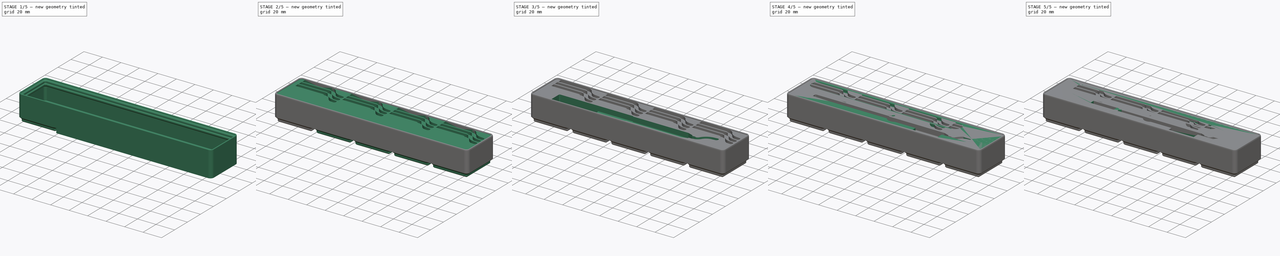
[diagram: build sequence overview — one tinted view per stage of 5, left to right]
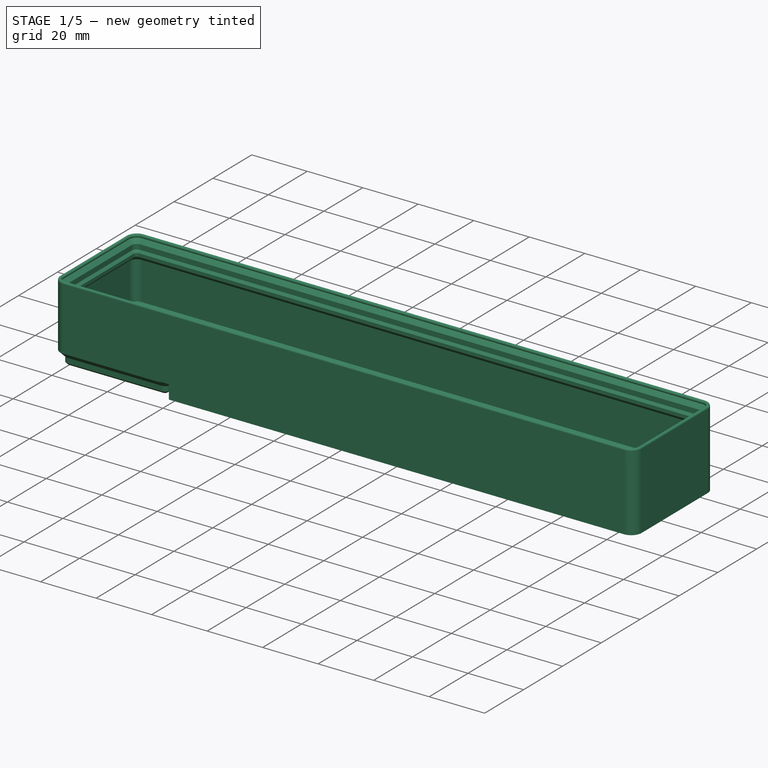
[diagram: stage 1 of 5 — iso view after this stage's code; geometry added in this stage tinted green]
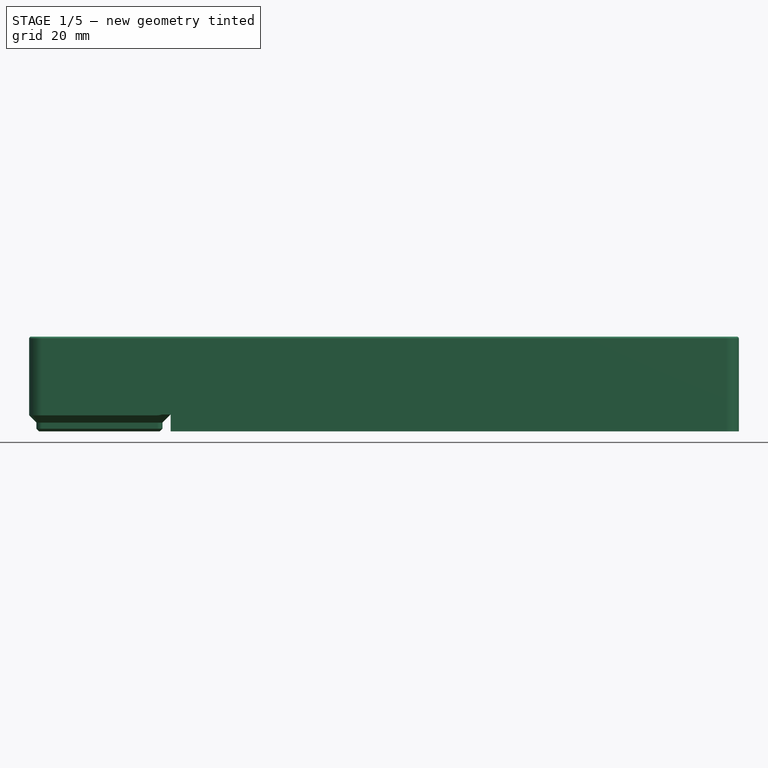
[diagram: stage 1 of 5 — front view after this stage's code; geometry added in this stage tinted green]
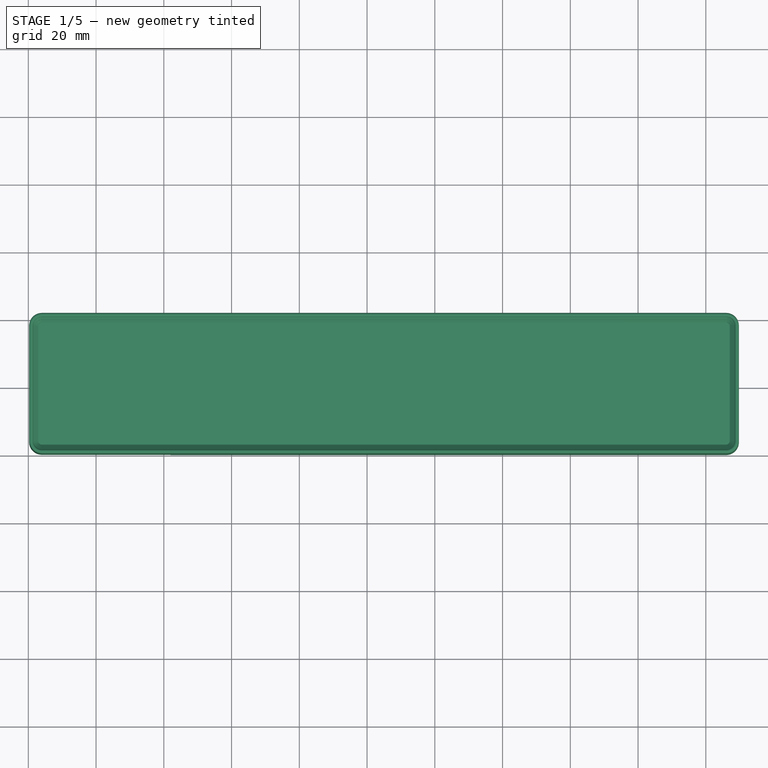
[diagram: stage 1 of 5 — top view after this stage's code; geometry added in this stage tinted green]
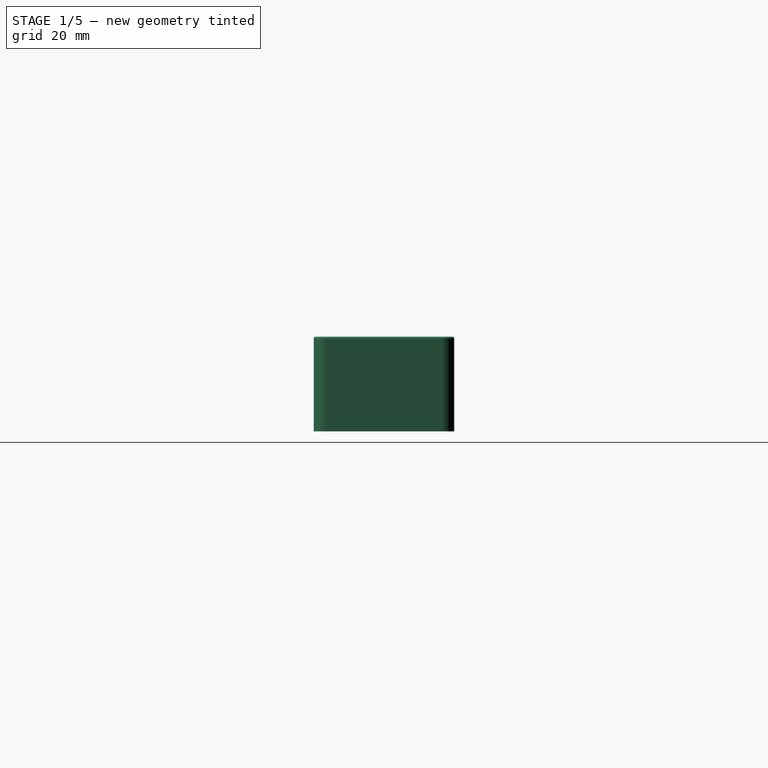
[diagram: stage 1 of 5 — right view after this stage's code; geometry added in this stage tinted green]
FCSTD DOCUMENT  (FreeCAD 0.21R)
Label: MyGridfinity 5x1x4
License: Creative Commons Attribution
LicenseURL: http://creativecommons.org/licenses/by/4.0/
objects: Sketcher::SketchObject×19, PartDesign::Pocket×11, PartDesign::Fillet×6, PartDesign::LinearPattern×4, PartDesign::Body×4, PartDesign::FeatureBase×4, PartDesign::Plane×2, PartDesign::Pad×2, PartDesign::MultiTransform×2, PartDesign::SubShapeBinder×2, App::FeaturePython×1, PartDesign::AdditivePipe×1, PartDesign::SubtractiveLoft×1, PartDesign::Hole×1
note: 81 computed .brp shape members not serialized (recipe doc carries the construction recipe); baked Part::Feature solids carry a one-line shape summary decoded from their .brp

FEATURE [App::FeaturePython] dd  # WARN: FeaturePython — macro-defined, semantics opaque (R4)
  DynamicData = Created with DynamicData (v2.46) workbench. | This is a simple container object built | for holding custom properties.
  ddBase_screw_diameter = 3
  ddBase_screw_hole_depth = 2.6
  ddBottom_chamfer = 0.8
  ddCell_center = 21
  ddClearance = 0.25
  ddColumns = 5
  ddCorner_fillet = 4
  ddFrame_height = 5
  ddFrame_width = 2.4
  ddGrid_size = 42
  ddHeight = 4
  ddMagnet_diameter = 6.5
  ddMagnet_inset = 8
  ddMagnet_thickness = 2.4
  ddRows = 1
  ddSet_screw_holes = true
  ddStorage_height = 28
  ddStorage_height_unit = 7
  ddTotal_length = 42
  ddTotal_width = 210
  ddWall_thickness = 1.2
  expr: ddBase_screw_hole_depth = max(ddSet_screw_holes * (ddFrame_height - ddMagnet_thickness); 1e-06mm)
  expr: ddCell_center = ddGrid_size / 2
  expr: ddStorage_height = max(ddStorage_height_unit * ddHeight; ddFrame_height + ddWall_thickness)
  expr: ddStorage_height_unit = ddGrid_size / 6
  expr: ddTotal_length = ddRows * ddGrid_size
  expr: ddTotal_width = ddColumns * ddGrid_size
FEATURE [Sketcher::SketchObject] Sketch005  label="Sketch_storage_wall_profile"
  AttachmentOffset = pos=(0,0,21) rot=(0,0,1;0rad)
  FullyConstrained = true
  MapMode = 5
  Placement = pos=(21,-4.7e-15,4.7e-15) rot=(0.57735,0.57735,0.57735;2.0944rad)
  Support = -> [YZ_Plane001]
  expr: .AttachmentOffset.Base.z = dd.ddCell_center
  expr: Constraints[16] = dd.ddFrame_height - dd.ddClearance
  expr: Constraints[17] = dd.ddBottom_chamfer
  expr: Constraints[26] = dd.ddWall_thickness
  expr: Constraints[27] = dd.ddWall_thickness
  expr: Constraints[28] = dd.ddStorage_height
  expr: Constraints[47] = dd.ddWall_thickness
  expr: Constraints[6] = dd.ddClearance
  expr: Constraints[7] = dd.ddFrame_width - dd.ddClearance
  sketch-geometry (17):
    g0: LineSegment StartX=0.25 StartY=0 StartZ=0 EndX=0.25 EndY=27.4 EndZ=0
    g1: LineSegment StartX=0.25 StartY=27.4 StartZ=0 EndX=0.85 EndY=27.4 EndZ=0
    g2: LineSegment StartX=0.85 StartY=27.4 StartZ=0 EndX=0.425736 EndY=26.9757 EndZ=0
    g3: LineSegment StartX=0.425736 StartY=26.9757 StartZ=0 EndX=2.15 EndY=25.2515 EndZ=0
    g4: LineSegment StartX=2.15 StartY=25.2515 StartZ=0 EndX=0 EndY=27.4015 EndZ=0
    g5: LineSegment StartX=2.15 StartY=25.2515 StartZ=0 EndX=2.15 EndY=23.4515 EndZ=0
    g6: LineSegment StartX=2.15 StartY=23.4515 StartZ=0 EndX=2.95 EndY=22.6515 EndZ=0
    g7: LineSegment StartX=2.95 StartY=22.6515 StartZ=0 EndX=2.95 EndY=21.4515 EndZ=0
    g8: LineSegment StartX=2.95 StartY=21.4515 StartZ=0 EndX=1.45 EndY=19.9515 EndZ=0
    g9: LineSegment StartX=1.45 StartY=19.9515 StartZ=0 EndX=1.45 EndY=-8.04853 EndZ=0
    g10: LineSegment StartX=1.45 StartY=-8.04853 StartZ=0 EndX=0.25 EndY=-8.04853 EndZ=0
    g11: LineSegment StartX=0.85 StartY=27.4 StartZ=0 EndX=0.85 EndY=28 EndZ=0
    g12: LineSegment StartX=1.45 StartY=19.9515 StartZ=0 EndX=1.45 EndY=28 EndZ=0
    g13: LineSegment StartX=0.85 StartY=28 StartZ=0 EndX=1.45 EndY=28 EndZ=0
    g14: LineSegment StartX=0.25 StartY=-8.04853 StartZ=0 EndX=0.25 EndY=0 EndZ=0
    g15: ArcOfCircle CenterX=0.85 CenterY=27.4 CenterZ=0 NormalX=0 NormalY=0 NormalZ=1 AngleXU=0 Radius=0.6 StartAngle=1.5708 EndAngle=3.14159
    g16: ArcOfCircle CenterX=0.85 CenterY=27.4 CenterZ=0 NormalX=0 NormalY=0 NormalZ=1 AngleXU=0 Radius=0.6 StartAngle=3.92699 EndAngle=7.85398
  constraints (48):
    c: Vertical(g0)
    c: Coincident(g1,g0)
    c: Horizontal(g1)
    c: Coincident(g2,g1)
    c: Coincident(g3,g2)
    c: Perpendicular(g3,g2)
    c: DistanceX(g-1,g0) = 0.25
    c: DistanceX(g-1,g3) = 2.15
    c: Coincident(g4,g3)
    c: PointOnObject(g4,g-2)
    c: PointOnObject(g2,g4)
    c: Angle(g-2,g4) = 0.785398
    c: Coincident(g5,g3)
    c: Vertical(g5)
    c: Coincident(g6,g5)
    c: Parallel(g4,g6)
    c: DistanceY(g6,g4) = 4.75
    c: DistanceX(g5,g6) = 0.8
    c: Coincident(g7,g6)
    c: Vertical(g7)
    c: Coincident(g8,g7)
    c: Coincident(g9,g8)
    c: Vertical(g9)
    c: Coincident(g10,g9)
    c: Horizontal(g10)
    c: Perpendicular(g8,g4)
    c: DistanceY(g7,g6) = 1.2
    c: DistanceX(g0,g9) = 1.2
    c: DistanceY(g-1,g11) = 28
    c: Coincident(g12,g8)
    c: Vertical(g12)
    c: Coincident(g13,g11)
    c: Coincident(g13,g12)
    c: Horizontal(g13)
    c: PointOnObject(g0,g-1)
    c: Coincident(g14,g10)
    c: Coincident(g14,g0)
    c: Vertical(g14)
    c: Equal(g12,g14)
    c: Vertical(g11)
    c: Coincident(g15,g1)
    c: Coincident(g15,g0)
    c: Coincident(g15,g11)
    c: Coincident(g16,g15)
    c: Coincident(g16,g15)
    c: Coincident(g16,g3)
    c: Coincident(g11,g15)
    c: Diameter(g15) = 1.2
FEATURE [Sketcher::SketchObject] Sketch006  label="Sketch_storage_wall_path"
  FullyConstrained = true
  MapMode = 5
  Support = -> [XY_Plane001]
  expr: Constraints[21] = dd.ddCorner_fillet
  expr: Constraints[22] = dd.ddTotal_width
  expr: Constraints[23] = dd.ddTotal_length
  sketch-geometry (10):
    g0: ArcOfCircle CenterX=4 CenterY=4 CenterZ=0 NormalX=0 NormalY=0 NormalZ=1 AngleXU=0 Radius=4 StartAngle=3.14159 EndAngle=4.71239
    g1: LineSegment StartX=0 StartY=4 StartZ=0 EndX=0 EndY=38 EndZ=0
    g2: ArcOfCircle CenterX=4 CenterY=38 CenterZ=0 NormalX=0 NormalY=0 NormalZ=1 AngleXU=0 Radius=4 StartAngle=1.5708 EndAngle=3.14159
    g3: LineSegment StartX=4 StartY=42 StartZ=0 EndX=206 EndY=42 EndZ=0
    g4: ArcOfCircle CenterX=206 CenterY=38 CenterZ=0 NormalX=0 NormalY=0 NormalZ=1 AngleXU=0 Radius=4 StartAngle=-9e-16 EndAngle=1.5708
    g5: LineSegment StartX=210 StartY=38 StartZ=0 EndX=210 EndY=4 EndZ=0
    g6: ArcOfCircle CenterX=206 CenterY=4 CenterZ=0 NormalX=0 NormalY=0 NormalZ=1 AngleXU=0 Radius=4 StartAngle=4.71239 EndAngle=6.28319
    g7: LineSegment StartX=206 StartY=0 StartZ=0 EndX=4 EndY=0 EndZ=0
    g8: GeomPoint X=0 Y=0 Z=0
    g9: GeomPoint X=210 Y=42 Z=0
  constraints (24):
    c: Tangent(g0,g1) = 1.5708
    c: Tangent(g1,g2) = 1.5708
    c: Tangent(g2,g3) = 1.5708
    c: Tangent(g3,g4) = 1.5708
    c: Tangent(g4,g5) = 1.5708
    c: Tangent(g5,g6) = 1.5708
    c: Tangent(g6,g7) = 1.5708
    c: Tangent(g7,g0) = 1.5708
    c: Horizontal(g3)
    c: Horizontal(g7)
    c: Vertical(g1)
    c: Vertical(g5)
    c: Equal(g0,g2)
    c: Equal(g2,g4)
    c: Equal(g4,g6)
    c: PointOnObject(g8,g1)
    c: PointOnObject(g8,g7)
    c: PointOnObject(g9,g3)
    c: PointOnObject(g9,g5)
    c: PointOnObject(g8,g-2)
    c: PointOnObject(g0,g-1)
    c: Radius(g0) = 4
    c: DistanceX(g0,g5) = 210
    c: DistanceY(g0,g2) = 42
FEATURE [PartDesign::AdditivePipe] AdditivePipe  label="AdditivePipe_storage_wall"
  AuxilleryCurvelinear = true
  AuxillerySpineTangent = false
  Binormal = (0,0,0)
  Mode = 0
  Placement = pos=(0,0,0) rot=(0.57735,0.57735,0.57735;2.0944rad)
  Profile = -> Sketch005
  Refine = true
  Spine = -> Sketch006
  SpineTangent = false
  Transformation = 0
  Transition = 0
FEATURE [PartDesign::Plane] DatumPlane  label="DatumPlane_frame_height"
  AttachmentOffset = pos=(0,0,5) rot=(0,0,1;0rad)
  Length = 260.096
  MapMode = 5
  Placement = pos=(0,0,5) rot=(0,0,1;0rad)
  ResizeMode = 0
  Support = -> [XY_Plane001]
  Width = 92.0958
  expr: .AttachmentOffset.Base.z = dd.ddFrame_height
FEATURE [Sketcher::SketchObject] Sketch007  label="Sketch_trim_wall_bottom"
  FullyConstrained = true
  MapMode = 5
  Placement = pos=(0,0,5) rot=(0,0,1;0rad)
  Support = -> [DatumPlane]
  expr: Constraints[7] = dd.ddTotal_width + 10mm
  expr: Constraints[8] = dd.ddTotal_length + 10mm
  sketch-geometry (4):
    g0: LineSegment StartX=-5 StartY=-5 StartZ=0 EndX=215 EndY=-5 EndZ=0
    g1: LineSegment StartX=215 StartY=-5 StartZ=0 EndX=215 EndY=47 EndZ=0
    g2: LineSegment StartX=215 StartY=47 StartZ=0 EndX=-5 EndY=47 EndZ=0
    g3: LineSegment StartX=-5 StartY=47 StartZ=0 EndX=-5 EndY=-5 EndZ=0
  constraints (12):
    c: Coincident(g0,g1)
    c: Coincident(g1,g2)
    c: Coincident(g2,g3)
    c: Horizontal(g0)
    c: Horizontal(g2)
    c: Vertical(g1)
    c: Vertical(g3)
    c: DistanceX(g0,g0) = 220
    c: DistanceY(g0,g2) = 52
    c: Coincident(g3,g0)
    c: DistanceX(g0,g-1) = 5
    c: DistanceY(g0,g-1) = 5
FEATURE [PartDesign::Pocket] Pocket  label="Pocket_trim_wall_bottom"
  BaseFeature = -> AdditivePipe
  Direction = (0,0,-1)
  Length = 5
  Length2 = 5
  Placement = pos=(0,0,0) rot=(0.57735,0.57735,0.57735;2.0944rad)
  Profile = -> Sketch007
  ReferenceAxis = -> Sketch007 [N_Axis]
  Refine = true
  Type = 1
FEATURE [Sketcher::SketchObject] Sketch008  label="Sketch_storage_stock"
  FullyConstrained = true
  MapMode = 5
  Support = -> [XY_Plane001]
  expr: Constraints[19] = dd.ddClearance
  expr: Constraints[20] = dd.ddClearance
  expr: Constraints[21] = dd.ddCorner_fillet
  expr: Constraints[22] = dd.ddTotal_width - 2 * dd.ddCorner_fillet
  expr: Constraints[23] = dd.ddTotal_length - 2 * dd.ddCorner_fillet
  sketch-geometry (10):
    g0: ArcOfCircle CenterX=4 CenterY=4 CenterZ=0 NormalX=0 NormalY=0 NormalZ=1 AngleXU=0 Radius=3.75 StartAngle=3.14159 EndAngle=4.71239
    g1: LineSegment StartX=0.25 StartY=4 StartZ=0 EndX=0.25 EndY=38 EndZ=0
    g2: ArcOfCircle CenterX=4 CenterY=38 CenterZ=0 NormalX=0 NormalY=0 NormalZ=1 AngleXU=0 Radius=3.75 StartAngle=1.5708 EndAngle=3.14159
    g3: LineSegment StartX=4 StartY=41.75 StartZ=0 EndX=206 EndY=41.75 EndZ=0
    g4: ArcOfCircle CenterX=206 CenterY=38 CenterZ=0 NormalX=0 NormalY=0 NormalZ=1 AngleXU=0 Radius=3.75 StartAngle=-9e-16 EndAngle=1.5708
    g5: LineSegment StartX=209.75 StartY=38 StartZ=0 EndX=209.75 EndY=4 EndZ=0
    g6: ArcOfCircle CenterX=206 CenterY=4 CenterZ=0 NormalX=0 NormalY=0 NormalZ=1 AngleXU=0 Radius=3.75 StartAngle=4.71239 EndAngle=6.28319
    g7: LineSegment StartX=206 StartY=0.25 StartZ=0 EndX=4 EndY=0.25 EndZ=0
    g8: GeomPoint X=0.25 Y=0.25 Z=0
    g9: GeomPoint X=209.75 Y=41.75 Z=0
  constraints (24):
    c: Tangent(g0,g1) = 1.5708
    c: Tangent(g1,g2) = 1.5708
    c: Tangent(g2,g3) = 1.5708
    c: Tangent(g3,g4) = 1.5708
    c: Tangent(g4,g5) = 1.5708
    c: Tangent(g5,g6) = 1.5708
    c: Tangent(g6,g7) = 1.5708
    c: Tangent(g7,g0) = 1.5708
    c: Horizontal(g3)
    c: Horizontal(g7)
    c: Vertical(g1)
    c: Vertical(g5)
    c: Equal(g0,g2)
    c: Equal(g2,g4)
    c: Equal(g4,g6)
    c: PointOnObject(g8,g1)
    c: PointOnObject(g8,g7)
    c: PointOnObject(g9,g3)
    c: PointOnObject(g9,g5)
    c: DistanceX(g-1,g0) = 0.25
    c: DistanceY(g-1,g0) = 0.25
    c: DistanceX(g-1,g0) = 4
    c: DistanceX(g2,g4) = 202
    c: DistanceY(g6,g4) = 34
FEATURE [PartDesign::Pad] Pad001  label="Pad_storage_stock"
  BaseFeature = -> Pocket
  Direction = (0,0,1)
  Length = 6.2
  Length2 = 10
  Placement = pos=(0,0,0) rot=(0.57735,0.57735,0.57735;2.0944rad)
  Profile = -> Sketch008
  ReferenceAxis = -> Sketch008 [N_Axis]
  Refine = true
  Type = 0
  expr: Length = dd.ddFrame_height + dd.ddWall_thickness
FEATURE [Sketcher::SketchObject] Sketch009  label="Sketch_storage_cell_cutout_top"
  AttachmentOffset = pos=(0,0,5) rot=(0,0,1;0rad)
  FullyConstrained = true
  MapMode = 5
  Placement = pos=(0,0,5) rot=(0,0,1;0rad)
  Support = -> [XY_Plane001]
  expr: .AttachmentOffset.Base.z = dd.ddFrame_height
  expr: Constraints[19] = dd.ddCorner_fillet - 1e-06mm
  expr: Constraints[20] = dd.ddCorner_fillet
  expr: Constraints[21] = dd.ddCorner_fillet
  expr: Constraints[31] = dd.ddCorner_fillet
  expr: Constraints[32] = dd.ddCorner_fillet
  expr: Constraints[33] = dd.ddGrid_size
  expr: Constraints[34] = dd.ddGrid_size
  sketch-geometry (14):
    g0: ArcOfCircle CenterX=4 CenterY=4 CenterZ=0 NormalX=0 NormalY=0 NormalZ=1 AngleXU=0 Radius=4 StartAngle=3.14159 EndAngle=4.71239
    g1: LineSegment StartX=1e-06 StartY=4 StartZ=0 EndX=1e-06 EndY=38 EndZ=0
    g2: ArcOfCircle CenterX=4 CenterY=38 CenterZ=0 NormalX=0 NormalY=0 NormalZ=1 AngleXU=0 Radius=4 StartAngle=1.5708 EndAngle=3.14159
    g3: LineSegment StartX=4 StartY=42 StartZ=0 EndX=38 EndY=42 EndZ=0
    g4: ArcOfCircle CenterX=38 CenterY=38 CenterZ=0 NormalX=0 NormalY=0 NormalZ=1 AngleXU=0 Radius=4 StartAngle=-9e-16 EndAngle=1.5708
    g5: LineSegment StartX=42 StartY=38 StartZ=0 EndX=42 EndY=4 EndZ=0
    g6: ArcOfCircle CenterX=38 CenterY=4 CenterZ=0 NormalX=0 NormalY=0 NormalZ=1 AngleXU=0 Radius=4 StartAngle=4.71239 EndAngle=6.28319
    g7: LineSegment StartX=38 StartY=1e-06 StartZ=0 EndX=4 EndY=1e-06 EndZ=0
    g8: GeomPoint X=1e-06 Y=1e-06 Z=0
    g9: GeomPoint X=42 Y=42 Z=0
    g10: LineSegment StartX=0 StartY=0 StartZ=0 EndX=42 EndY=0 EndZ=0
    g11: LineSegment StartX=42 StartY=0 StartZ=0 EndX=42 EndY=42 EndZ=0
    g12: LineSegment StartX=42 StartY=42 StartZ=0 EndX=0 EndY=42 EndZ=0
    g13: LineSegment StartX=0 StartY=42 StartZ=0 EndX=0 EndY=0 EndZ=0
  constraints (35):
    c: Tangent(g0,g1) = 1.5708
    c: Tangent(g1,g2) = 1.5708
    c: Tangent(g2,g3) = 1.5708
    c: Tangent(g3,g4) = 1.5708
    c: Tangent(g4,g5) = 1.5708
    c: Tangent(g5,g6) = 1.5708
    c: Tangent(g6,g7) = 1.5708
    c: Tangent(g7,g0) = 1.5708
    c: Horizontal(g3)
    c: Horizontal(g7)
    c: Vertical(g1)
    c: Vertical(g5)
    c: Equal(g0,g2)
    c: Equal(g2,g4)
    c: Equal(g4,g6)
    c: PointOnObject(g8,g1)
    c: PointOnObject(g8,g7)
    c: PointOnObject(g9,g3)
    c: PointOnObject(g9,g5)
    c: Radius(g0) = 4
    c: DistanceX(g-1,g0) = 4
    c: DistanceY(g-1,g0) = 4
    c: Coincident(g10,g11)
    c: Coincident(g11,g12)
    c: Coincident(g12,g13)
    c: Coincident(g13,g10)
    c: Horizontal(g10)
    c: Horizontal(g12)
    c: Vertical(g11)
    c: Vertical(g13)
    c: Coincident(g10,g-1)
    c: DistanceX(g6,g10) = 4
    c: DistanceY(g2,g12) = 4
    c: DistanceX(g10,g10) = 42
    c: DistanceY(g10,g12) = 42
FEATURE [Sketcher::SketchObject] Sketch010  label="Sketch_storage_cell_cutout_top_chamfer"
  AttachmentOffset = pos=(0,0,2.6) rot=(0,0,1;0rad)
  FullyConstrained = true
  MapMode = 5
  Placement = pos=(0,0,2.6) rot=(0,0,1;0rad)
  Support = -> [XY_Plane001]
  expr: .AttachmentOffset.Base.z = dd.ddFrame_height - dd.ddFrame_width
  expr: Constraints[19] = Sketch009.Constraints[19] - dd.ddFrame_width
  expr: Constraints[20] = Sketch009.Constraints[20]
  expr: Constraints[21] = Sketch009.Constraints[21]
  expr: Constraints[31] = Sketch009.Constraints[31]
  expr: Constraints[32] = Sketch009.Constraints[32]
  expr: Constraints[33] = Sketch009.Constraints[33]
  expr: Constraints[34] = Sketch009.Constraints[34]
  sketch-geometry (14):
    g0: ArcOfCircle CenterX=4 CenterY=4 CenterZ=0 NormalX=0 NormalY=0 NormalZ=1 AngleXU=0 Radius=1.6 StartAngle=3.14159 EndAngle=4.71239
    g1: LineSegment StartX=2.4 StartY=4 StartZ=0 EndX=2.4 EndY=38 EndZ=0
    g2: ArcOfCircle CenterX=4 CenterY=38 CenterZ=0 NormalX=0 NormalY=0 NormalZ=1 AngleXU=0 Radius=1.6 StartAngle=1.5708 EndAngle=3.14159
    g3: LineSegment StartX=4 StartY=39.6 StartZ=0 EndX=38 EndY=39.6 EndZ=0
    g4: ArcOfCircle CenterX=38 CenterY=38 CenterZ=0 NormalX=0 NormalY=0 NormalZ=1 AngleXU=0 Radius=1.6 StartAngle=3.81e-14 EndAngle=1.5708
    g5: LineSegment StartX=39.6 StartY=38 StartZ=0 EndX=39.6 EndY=4 EndZ=0
    g6: ArcOfCircle CenterX=38 CenterY=4 CenterZ=0 NormalX=0 NormalY=0 NormalZ=1 AngleXU=0 Radius=1.6 StartAngle=4.71239 EndAngle=6.28319
    g7: LineSegment StartX=38 StartY=2.4 StartZ=0 EndX=4 EndY=2.4 EndZ=0
    g8: GeomPoint X=2.4 Y=2.4 Z=0
    g9: GeomPoint X=39.6 Y=39.6 Z=0
    g10: LineSegment StartX=0 StartY=0 StartZ=0 EndX=42 EndY=0 EndZ=0
    g11: LineSegment StartX=42 StartY=0 StartZ=0 EndX=42 EndY=42 EndZ=0
    g12: LineSegment StartX=42 StartY=42 StartZ=0 EndX=0 EndY=42 EndZ=0
    g13: LineSegment StartX=0 StartY=42 StartZ=0 EndX=0 EndY=0 EndZ=0
  constraints (35):
    c: Tangent(g0,g1) = 1.5708
    c: Tangent(g1,g2) = 1.5708
    c: Tangent(g2,g3) = 1.5708
    c: Tangent(g3,g4) = 1.5708
    c: Tangent(g4,g5) = 1.5708
    c: Tangent(g5,g6) = 1.5708
    c: Tangent(g6,g7) = 1.5708
    c: Tangent(g7,g0) = 1.5708
    c: Horizontal(g3)
    c: Horizontal(g7)
    c: Vertical(g1)
    c: Vertical(g5)
    c: Equal(g0,g2)
    c: Equal(g2,g4)
    c: Equal(g4,g6)
    c: PointOnObject(g8,g1)
    c: PointOnObject(g8,g7)
    c: PointOnObject(g9,g3)
    c: PointOnObject(g9,g5)
    c: Radius(g0) = 1.6
    c: DistanceX(g-1,g0) = 4
    c: DistanceY(g-1,g0) = 4
    c: Coincident(g10,g11)
    c: Coincident(g11,g12)
    c: Coincident(g12,g13)
    c: Coincident(g13,g10)
    c: Horizontal(g10)
    c: Horizontal(g12)
    c: Vertical(g11)
    c: Vertical(g13)
    c: Coincident(g10,g-1)
    c: DistanceX(g6,g10) = 4
    c: DistanceY(g2,g12) = 4
    c: DistanceX(g10,g10) = 42
    c: DistanceY(g10,g12) = 42
FEATURE [Sketcher::SketchObject] Sketch011  label="Sketch_storage_cell_cutout_bottom_chamfer"
  AttachmentOffset = pos=(0,0,0.8) rot=(0,0,1;0rad)
  FullyConstrained = true
  MapMode = 5
  Placement = pos=(0,0,0.8) rot=(0,0,1;0rad)
  Support = -> [XY_Plane001]
  expr: .AttachmentOffset.Base.z = dd.ddBottom_chamfer
  expr: Constraints[19] = Sketch010.Constraints[19]
  expr: Constraints[20] = Sketch010.Constraints[20]
  expr: Constraints[21] = Sketch010.Constraints[21]
  expr: Constraints[31] = Sketch010.Constraints[31]
  expr: Constraints[32] = Sketch010.Constraints[32]
  expr: Constraints[33] = Sketch010.Constraints[33]
  expr: Constraints[34] = Sketch010.Constraints[34]
  sketch-geometry (14):
    g0: ArcOfCircle CenterX=4 CenterY=4 CenterZ=0 NormalX=0 NormalY=0 NormalZ=1 AngleXU=0 Radius=1.6 StartAngle=3.14159 EndAngle=4.71239
    g1: LineSegment StartX=2.4 StartY=4 StartZ=0 EndX=2.4 EndY=38 EndZ=0
    g2: ArcOfCircle CenterX=4 CenterY=38 CenterZ=0 NormalX=0 NormalY=0 NormalZ=1 AngleXU=0 Radius=1.6 StartAngle=1.5708 EndAngle=3.14159
    g3: LineSegment StartX=4 StartY=39.6 StartZ=0 EndX=38 EndY=39.6 EndZ=0
    g4: ArcOfCircle CenterX=38 CenterY=38 CenterZ=0 NormalX=0 NormalY=0 NormalZ=1 AngleXU=0 Radius=1.6 StartAngle=3.81e-14 EndAngle=1.5708
    g5: LineSegment StartX=39.6 StartY=38 StartZ=0 EndX=39.6 EndY=4 EndZ=0
    g6: ArcOfCircle CenterX=38 CenterY=4 CenterZ=0 NormalX=0 NormalY=0 NormalZ=1 AngleXU=0 Radius=1.6 StartAngle=4.71239 EndAngle=6.28319
    g7: LineSegment StartX=38 StartY=2.4 StartZ=0 EndX=4 EndY=2.4 EndZ=0
    g8: GeomPoint X=2.4 Y=2.4 Z=0
    g9: GeomPoint X=39.6 Y=39.6 Z=0
    g10: LineSegment StartX=0 StartY=0 StartZ=0 EndX=42 EndY=0 EndZ=0
    g11: LineSegment StartX=42 StartY=0 StartZ=0 EndX=42 EndY=42 EndZ=0
    g12: LineSegment StartX=42 StartY=42 StartZ=0 EndX=0 EndY=42 EndZ=0
    g13: LineSegment StartX=0 StartY=42 StartZ=0 EndX=0 EndY=0 EndZ=0
  constraints (35):
    c: Tangent(g0,g1) = 1.5708
    c: Tangent(g1,g2) = 1.5708
    c: Tangent(g2,g3) = 1.5708
    c: Tangent(g3,g4) = 1.5708
    c: Tangent(g4,g5) = 1.5708
    c: Tangent(g5,g6) = 1.5708
    c: Tangent(g6,g7) = 1.5708
    c: Tangent(g7,g0) = 1.5708
    c: Horizontal(g3)
    c: Horizontal(g7)
    c: Vertical(g1)
    c: Vertical(g5)
    c: Equal(g0,g2)
    c: Equal(g2,g4)
    c: Equal(g4,g6)
    c: PointOnObject(g8,g1)
    c: PointOnObject(g8,g7)
    c: PointOnObject(g9,g3)
    c: PointOnObject(g9,g5)
    c: Radius(g0) = 1.6
    c: DistanceX(g-1,g0) = 4
    c: DistanceY(g-1,g0) = 4
    c: Coincident(g10,g11)
    c: Coincident(g11,g12)
    c: Coincident(g12,g13)
    c: Coincident(g13,g10)
    c: Horizontal(g10)
    c: Horizontal(g12)
    c: Vertical(g11)
    c: Vertical(g13)
    c: Coincident(g10,g-1)
    c: DistanceX(g6,g10) = 4
    c: DistanceY(g2,g12) = 4
    c: DistanceX(g10,g10) = 42
    c: DistanceY(g10,g12) = 42
FEATURE [Sketcher::SketchObject] Sketch012  label="Sketch_storage_cell_cutout_bottom"
  FullyConstrained = true
  MapMode = 5
  Support = -> [XY_Plane001]
  expr: Constraints[19] = Sketch011.Constraints[19] - dd.ddBottom_chamfer
  expr: Constraints[20] = Sketch011.Constraints[20]
  expr: Constraints[21] = Sketch011.Constraints[21]
  expr: Constraints[31] = Sketch011.Constraints[31]
  expr: Constraints[32] = Sketch011.Constraints[32]
  expr: Constraints[33] = Sketch011.Constraints[33]
  expr: Constraints[34] = Sketch011.Constraints[34]
  sketch-geometry (14):
    g0: ArcOfCircle CenterX=4 CenterY=4 CenterZ=0 NormalX=0 NormalY=0 NormalZ=1 AngleXU=0 Radius=0.799999 StartAngle=3.14159 EndAngle=4.71239
    g1: LineSegment StartX=3.2 StartY=4 StartZ=0 EndX=3.2 EndY=38 EndZ=0
    g2: ArcOfCircle CenterX=4 CenterY=38 CenterZ=0 NormalX=0 NormalY=0 NormalZ=1 AngleXU=0 Radius=0.799999 StartAngle=1.5708 EndAngle=3.14159
    g3: LineSegment StartX=4 StartY=38.8 StartZ=0 EndX=38 EndY=38.8 EndZ=0
    g4: ArcOfCircle CenterX=38 CenterY=38 CenterZ=0 NormalX=0 NormalY=0 NormalZ=1 AngleXU=0 Radius=0.799999 StartAngle=-2.7e-15 EndAngle=1.5708
    g5: LineSegment StartX=38.8 StartY=38 StartZ=0 EndX=38.8 EndY=4 EndZ=0
    g6: ArcOfCircle CenterX=38 CenterY=4 CenterZ=0 NormalX=0 NormalY=0 NormalZ=1 AngleXU=0 Radius=0.799999 StartAngle=4.71239 EndAngle=6.28319
    g7: LineSegment StartX=38 StartY=3.2 StartZ=0 EndX=4 EndY=3.2 EndZ=0
    g8: GeomPoint X=3.2 Y=3.2 Z=0
    g9: GeomPoint X=38.8 Y=38.8 Z=0
    g10: LineSegment StartX=0 StartY=0 StartZ=0 EndX=42 EndY=0 EndZ=0
    g11: LineSegment StartX=42 StartY=0 StartZ=0 EndX=42 EndY=42 EndZ=0
    g12: LineSegment StartX=42 StartY=42 StartZ=0 EndX=0 EndY=42 EndZ=0
    g13: LineSegment StartX=0 StartY=42 StartZ=0 EndX=0 EndY=0 EndZ=0
  constraints (35):
    c: Tangent(g0,g1) = 1.5708
    c: Tangent(g1,g2) = 1.5708
    c: Tangent(g2,g3) = 1.5708
    c: Tangent(g3,g4) = 1.5708
    c: Tangent(g4,g5) = 1.5708
    c: Tangent(g5,g6) = 1.5708
    c: Tangent(g6,g7) = 1.5708
    c: Tangent(g7,g0) = 1.5708
    c: Horizontal(g3)
    c: Horizontal(g7)
    c: Vertical(g1)
    c: Vertical(g5)
    c: Equal(g0,g2)
    c: Equal(g2,g4)
    c: Equal(g4,g6)
    c: PointOnObject(g8,g1)
    c: PointOnObject(g8,g7)
    c: PointOnObject(g9,g3)
    c: PointOnObject(g9,g5)
    c: Radius(g0) = 0.799999
    c: DistanceX(g-1,g0) = 4
    c: DistanceY(g-1,g0) = 4
    c: Coincident(g10,g11)
    c: Coincident(g11,g12)
    c: Coincident(g12,g13)
    c: Coincident(g13,g10)
    c: Horizontal(g10)
    c: Horizontal(g12)
    c: Vertical(g11)
    c: Vertical(g13)
    c: Coincident(g10,g-1)
    c: DistanceX(g6,g10) = 4
    c: DistanceY(g2,g12) = 4
    c: DistanceX(g10,g10) = 42
    c: DistanceY(g10,g12) = 42
FEATURE [PartDesign::SubtractiveLoft] SubtractiveLoft001  label="SubtractiveLoft_storage_cell_cutout"
  BaseFeature = -> Pad001
  Closed = false
  Placement = pos=(0,0,0) rot=(0.57735,0.57735,0.57735;2.0944rad)
  Profile = -> Sketch009
  Refine = true
  Ruled = true
  Sections = -> [Sketch010,Sketch011,Sketch012]
FEATURE [Sketcher::SketchObject] Sketch013  label="Sketch_base_magnets"
  FullyConstrained = true
  MapMode = 5
  Support = -> [XY_Plane001]
  expr: Constraints[21] = dd.ddMagnet_inset
  expr: Constraints[22] = dd.ddGrid_size
  expr: Constraints[23] = dd.ddGrid_size
  expr: Constraints[31] = dd.ddMagnet_diameter
  sketch-geometry (14):
    g0: ArcOfCircle CenterX=8 CenterY=8 CenterZ=0 NormalX=0 NormalY=0 NormalZ=1 AngleXU=0 Radius=8 StartAngle=3.14159 EndAngle=4.71239
    g1: LineSegment StartX=-1.8e-15 StartY=8 StartZ=0 EndX=-1.8e-15 EndY=34 EndZ=0
    g2: ArcOfCircle CenterX=8 CenterY=34 CenterZ=0 NormalX=0 NormalY=0 NormalZ=1 AngleXU=0 Radius=8 StartAngle=1.5708 EndAngle=3.14159
    g3: LineSegment StartX=8 StartY=42 StartZ=0 EndX=34 EndY=42 EndZ=0
    g4: ArcOfCircle CenterX=34 CenterY=34 CenterZ=0 NormalX=0 NormalY=0 NormalZ=1 AngleXU=0 Radius=8 StartAngle=0 EndAngle=1.5708
    g5: LineSegment StartX=42 StartY=34 StartZ=0 EndX=42 EndY=8 EndZ=0
    g6: ArcOfCircle CenterX=34 CenterY=8 CenterZ=0 NormalX=0 NormalY=0 NormalZ=1 AngleXU=0 Radius=8 StartAngle=4.71239 EndAngle=6.28319
    g7: LineSegment StartX=34 StartY=-1.8e-15 StartZ=0 EndX=8 EndY=-1.8e-15 EndZ=0
    g8: GeomPoint X=0 Y=0 Z=0
    g9: GeomPoint X=42 Y=42 Z=0
    g10: Circle CenterX=8 CenterY=34 CenterZ=0 NormalX=0 NormalY=0 NormalZ=1 AngleXU=0 Radius=3.25
    g11: Circle CenterX=34 CenterY=34 CenterZ=0 NormalX=0 NormalY=0 NormalZ=1 AngleXU=0 Radius=3.25
    g12: Circle CenterX=8 CenterY=8 CenterZ=0 NormalX=0 NormalY=0 NormalZ=1 AngleXU=0 Radius=3.25
    g13: Circle CenterX=34 CenterY=8 CenterZ=0 NormalX=0 NormalY=0 NormalZ=1 AngleXU=0 Radius=3.25
  constraints (32):
    c: Tangent(g0,g1) = 1.5708
    c: Tangent(g1,g2) = 1.5708
    c: Tangent(g2,g3) = 1.5708
    c: Tangent(g3,g4) = 1.5708
    c: Tangent(g4,g5) = 1.5708
    c: Tangent(g5,g6) = 1.5708
    c: Tangent(g6,g7) = 1.5708
    c: Tangent(g7,g0) = 1.5708
    c: Horizontal(g3)
    c: Horizontal(g7)
    c: Vertical(g1)
    c: Vertical(g5)
    c: Equal(g0,g2)
    c: Equal(g2,g4)
    c: Equal(g4,g6)
    c: PointOnObject(g8,g1)
    c: PointOnObject(g8,g7)
    c: PointOnObject(g9,g3)
    c: PointOnObject(g9,g5)
    c: PointOnObject(g0,g-2)
    c: PointOnObject(g0,g-1)
    c: DistanceX(g8,g0) = 8
    c: DistanceX(g0,g5) = 42
    c: DistanceY(g0,g2) = 42
    c: Coincident(g10,g2)
    c: Coincident(g11,g4)
    c: Coincident(g12,g0)
    c: Coincident(g13,g6)
    c: Equal(g12,g10)
    c: Equal(g12,g11)
    c: Equal(g12,g13)
    c: Diameter(g12) = 6.5
FEATURE [PartDesign::Hole] Hole  label="Hole_base_magnets"
  BaseFeature = -> SubtractiveLoft001
  CustomThreadClearance = 0
  Depth = 2.4
  DepthType = 0
  Diameter = 6.5
  DrillForDepth = false
  DrillPoint = 0
  DrillPointAngle = 118
  HoleCutCountersinkAngle = 90
  HoleCutCustomValues = false
  HoleCutDepth = 0
  HoleCutDiameter = 0
  HoleCutType = 0
  ModelThread = false
  Placement = pos=(0,0,0) rot=(0.57735,0.57735,0.57735;2.0944rad)
  Profile = -> Sketch013
  Refine = true
  Reversed = true
  Tapered = false
  TaperedAngle = 90
  ThreadClass = 0
  ThreadDepth = 2.4
  ThreadDepthType = 0
  ThreadDirection = 0
  ThreadFit = 0
  ThreadSize = 0
  ThreadType = 0
  Threaded = false
  UseCustomThreadClearance = false
  expr: Depth = dd.ddMagnet_thickness
  expr: Diameter = dd.ddMagnet_diameter
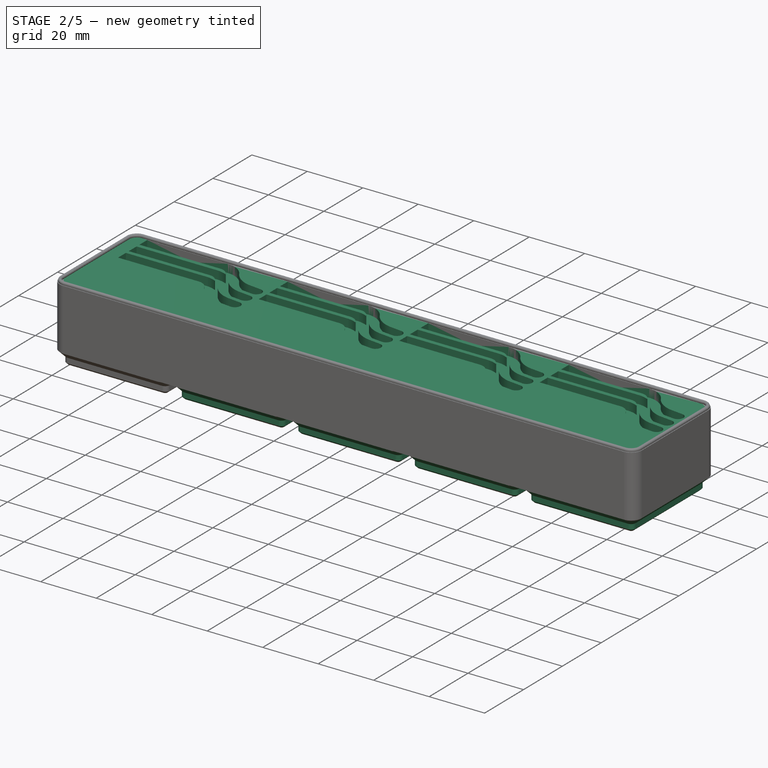
[diagram: stage 2 of 5 — iso view after this stage's code; geometry added in this stage tinted green]
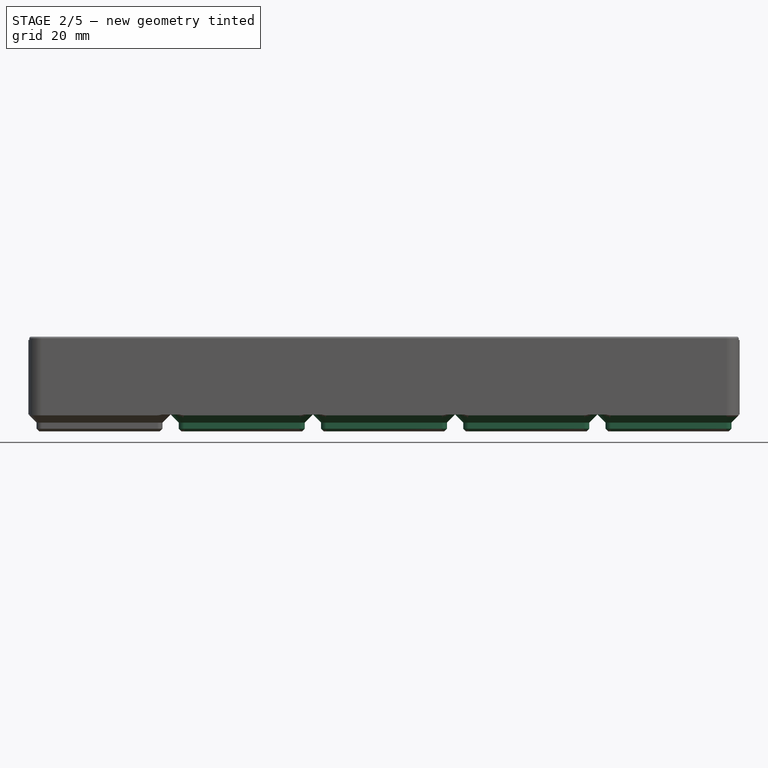
[diagram: stage 2 of 5 — front view after this stage's code; geometry added in this stage tinted green]
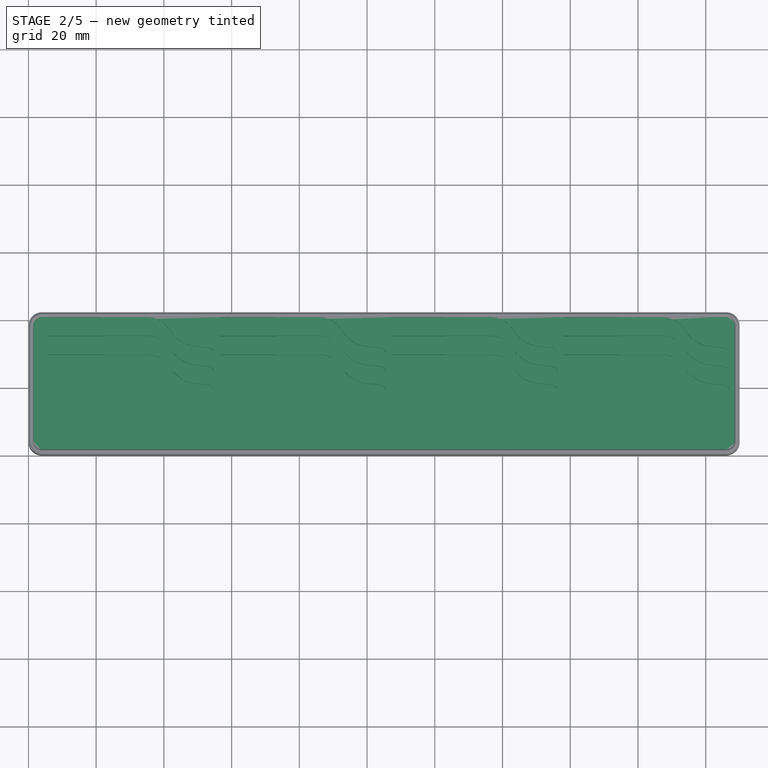
[diagram: stage 2 of 5 — top view after this stage's code; geometry added in this stage tinted green]
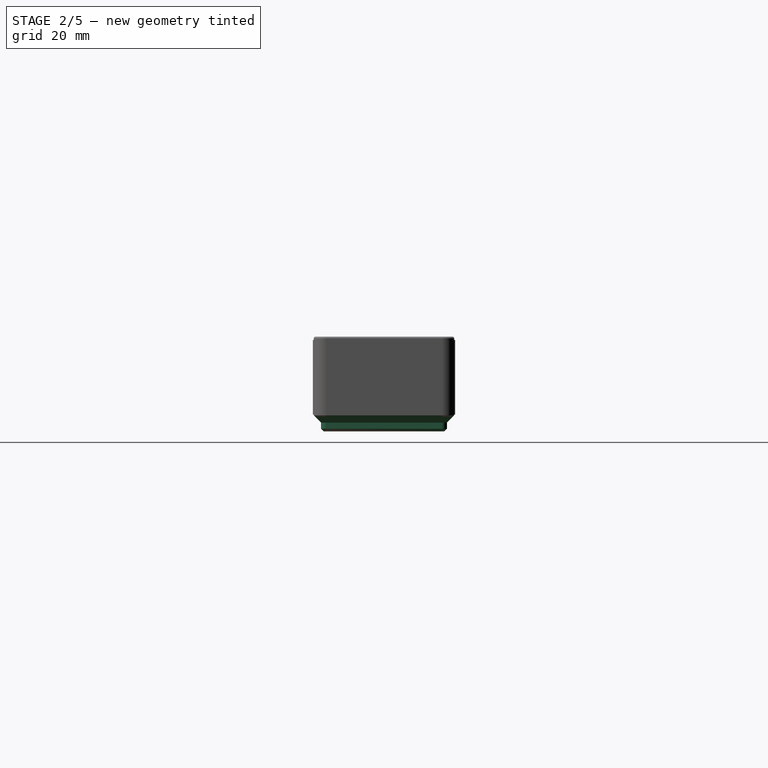
[diagram: stage 2 of 5 — right view after this stage's code; geometry added in this stage tinted green]
FEATURE [Sketcher::SketchObject] Sketch014  label="Sketch_base_screw_holes"
  AttachmentOffset = pos=(0,0,2.4) rot=(0,0,1;0rad)
  FullyConstrained = true
  MapMode = 5
  Placement = pos=(0,0,2.4) rot=(0,0,1;0rad)
  Support = -> [XY_Plane001]
  expr: .AttachmentOffset.Base.z = dd.ddMagnet_thickness
  expr: Constraints[21] = Sketch013.Constraints[21]
  expr: Constraints[22] = Sketch013.Constraints[22]
  expr: Constraints[23] = Sketch013.Constraints[23]
  expr: Constraints[31] = dd.ddBase_screw_diameter
  sketch-geometry (14):
    g0: ArcOfCircle CenterX=8 CenterY=8 CenterZ=0 NormalX=0 NormalY=0 NormalZ=1 AngleXU=0 Radius=8 StartAngle=3.14159 EndAngle=4.71239
    g1: LineSegment StartX=-1.8e-15 StartY=8 StartZ=0 EndX=-1.8e-15 EndY=34 EndZ=0
    g2: ArcOfCircle CenterX=8 CenterY=34 CenterZ=0 NormalX=0 NormalY=0 NormalZ=1 AngleXU=0 Radius=8 StartAngle=1.5708 EndAngle=3.14159
    g3: LineSegment StartX=8 StartY=42 StartZ=0 EndX=34 EndY=42 EndZ=0
    g4: ArcOfCircle CenterX=34 CenterY=34 CenterZ=0 NormalX=0 NormalY=0 NormalZ=1 AngleXU=0 Radius=8 StartAngle=0 EndAngle=1.5708
    g5: LineSegment StartX=42 StartY=34 StartZ=0 EndX=42 EndY=8 EndZ=0
    g6: ArcOfCircle CenterX=34 CenterY=8 CenterZ=0 NormalX=0 NormalY=0 NormalZ=1 AngleXU=0 Radius=8 StartAngle=4.71239 EndAngle=6.28319
    g7: LineSegment StartX=34 StartY=-1.8e-15 StartZ=0 EndX=8 EndY=-1.8e-15 EndZ=0
    g8: GeomPoint X=0 Y=0 Z=0
    g9: GeomPoint X=42 Y=42 Z=0
    g10: Circle CenterX=8 CenterY=34 CenterZ=0 NormalX=0 NormalY=0 NormalZ=1 AngleXU=0 Radius=1.5
    g11: Circle CenterX=34 CenterY=34 CenterZ=0 NormalX=0 NormalY=0 NormalZ=1 AngleXU=0 Radius=1.5
    g12: Circle CenterX=8 CenterY=8 CenterZ=0 NormalX=0 NormalY=0 NormalZ=1 AngleXU=0 Radius=1.5
    g13: Circle CenterX=34 CenterY=8 CenterZ=0 NormalX=0 NormalY=0 NormalZ=1 AngleXU=0 Radius=1.5
  constraints (32):
    c: Tangent(g0,g1) = 1.5708
    c: Tangent(g1,g2) = 1.5708
    c: Tangent(g2,g3) = 1.5708
    c: Tangent(g3,g4) = 1.5708
    c: Tangent(g4,g5) = 1.5708
    c: Tangent(g5,g6) = 1.5708
    c: Tangent(g6,g7) = 1.5708
    c: Tangent(g7,g0) = 1.5708
    c: Horizontal(g3)
    c: Horizontal(g7)
    c: Vertical(g1)
    c: Vertical(g5)
    c: Equal(g0,g2)
    c: Equal(g2,g4)
    c: Equal(g4,g6)
    c: PointOnObject(g8,g1)
    c: PointOnObject(g8,g7)
    c: PointOnObject(g9,g3)
    c: PointOnObject(g9,g5)
    c: PointOnObject(g0,g-2)
    c: PointOnObject(g0,g-1)
    c: DistanceX(g8,g0) = 8
    c: DistanceX(g0,g5) = 42
    c: DistanceY(g0,g2) = 42
    c: Coincident(g10,g2)
    c: Coincident(g11,g4)
    c: Coincident(g12,g0)
    c: Coincident(g13,g6)
    c: Equal(g12,g10)
    c: Equal(g12,g11)
    c: Equal(g12,g13)
    c: Diameter(g12) = 3
FEATURE [PartDesign::LinearPattern] LinearPattern002  label="LinearPattern_storage_grid_x"
  Direction = -> X_Axis001
  Length = 168
  Occurrences = 5
  Placement = pos=(0,0,0) rot=(0.57735,0.57735,0.57735;2.0944rad)
  Refine = true
  expr: Length = max(dd.ddTotal_width - dd.ddGrid_size; 1e-06mm)
  expr: Occurrences = max(dd.ddColumns; 2)
FEATURE [PartDesign::LinearPattern] LinearPattern003  label="LinearPattern_storage_grid_y"
  Direction = -> Y_Axis001
  Length = 42
  Occurrences = 1
  Placement = pos=(0,0,0) rot=(0.57735,0.57735,0.57735;2.0944rad)
  Refine = true
  expr: Length = max(dd.ddTotal_length - dd.ddGrid_size; dd.ddGrid_size)
  expr: Occurrences = dd.ddRows
FEATURE [PartDesign::MultiTransform] MultiTransform001  label="MultiTransform_storage_grid"
  BaseFeature = -> Hole
  Originals = -> [SubtractiveLoft001,Hole]
  Placement = pos=(0,0,0) rot=(0.57735,0.57735,0.57735;2.0944rad)
  Refine = true
  Transformations = -> [LinearPattern002,LinearPattern003]
FEATURE [PartDesign::SubShapeBinder] Binder
  BindCopyOnChange = 0
  BindMode = 0
  ClaimChildren = false
  Context = -> Body001 [Binder.]
  Fuse = false
  MakeFace = true
  OffsetFill = false
  OffsetIntersection = false
  OffsetJoinType = 0
  OffsetOpenResult = false
  PartialLoad = false
  Placement = pos=(0,0,4.99) rot=(0,0,1;0rad)
  Relative = false
  Support = -> [AdditivePipe[Sketch006.]]
  _Version = 2
FEATURE [PartDesign::Pad] Pad
  BaseFeature = -> MultiTransform001
  Direction = (0,0,1)
  Length = 22
  Length2 = 10
  Placement = pos=(0,0,0) rot=(0.57735,0.57735,0.57735;2.0944rad)
  Profile = -> Binder
  Type = 0
  expr: Length = dd.ddStorage_height - 6mm
FEATURE [PartDesign::Body] Body008  label="Scribe holder"
  BaseFeature = -> BaseFeature
  Group = -> [BaseFeature,DatumPlane001,Clone007,Pocket021,Sketch035,Sketch,Pocket022,Sketch036,Pocket023,Fillet016,Fillet]
  Origin = -> Origin008
  Tip = -> Fillet
FEATURE [PartDesign::FeatureBase] Clone008
  BaseFeature = -> Pad
  Placement = pos=(0,0,0) rot=(0.57735,0.57735,0.57735;2.0944rad)
FEATURE [Sketcher::SketchObject] Sketch034  label="Deburring tool sketch"
  AttachmentOffset = pos=(0,0,21) rot=(0,0,1;0rad)
  FullyConstrained = true
  MapMode = 5
  Placement = pos=(0,0,21) rot=(0,0,1;0rad)
  Support = -> [XY_Plane009]
  sketch-geometry (17):
    g0: LineSegment StartX=23 StartY=2.5 StartZ=0 EndX=102 EndY=2.5 EndZ=0
    g1: LineSegment StartX=102 StartY=15.1 StartZ=0 EndX=23 EndY=15.1 EndZ=0
    g2: LineSegment StartX=22 StartY=3.5 StartZ=0 EndX=22 EndY=14.1 EndZ=0
    g3: ArcOfCircle CenterX=23 CenterY=14.1 CenterZ=0 NormalX=0 NormalY=0 NormalZ=1 AngleXU=0 Radius=1 StartAngle=1.5708 EndAngle=3.14159
    g4: ArcOfCircle CenterX=23 CenterY=3.5 CenterZ=0 NormalX=0 NormalY=0 NormalZ=1 AngleXU=0 Radius=1 StartAngle=3.14159 EndAngle=4.71239
    g5: LineSegment StartX=102 StartY=15.1 StartZ=0 EndX=102 EndY=14.35 EndZ=0
    g6: LineSegment StartX=102 StartY=14.35 StartZ=0 EndX=162 EndY=14.35 EndZ=0
    g7: LineSegment StartX=102 StartY=2.5 StartZ=0 EndX=102 EndY=3.25 EndZ=0
    g8: LineSegment StartX=102 StartY=3.25 StartZ=0 EndX=162 EndY=3.25 EndZ=0
    g9: LineSegment StartX=162 StartY=3.25 StartZ=0 EndX=168 EndY=5.3 EndZ=0
    g10: LineSegment StartX=162 StartY=14.35 StartZ=0 EndX=168 EndY=12.3 EndZ=0
    g11: LineSegment StartX=168 StartY=12.3 StartZ=0 EndX=168 EndY=11.3 EndZ=0
    g12: LineSegment StartX=168 StartY=11.3 StartZ=0 EndX=172 EndY=11.3 EndZ=0
    g13: LineSegment StartX=168 StartY=5.3 StartZ=0 EndX=168 EndY=6.3 EndZ=0
    g14: LineSegment StartX=168 StartY=6.3 StartZ=0 EndX=172 EndY=6.29998 EndZ=0
    g15: LineSegment StartX=168 StartY=11.3 StartZ=0 EndX=168 EndY=6.3 EndZ=0
    g16: LineSegment StartX=172 StartY=11.3 StartZ=0 EndX=172 EndY=6.29998 EndZ=0
  constraints (48):
    c: Horizontal(g0)
    c: Vertical(g2)
    c: Horizontal(g1)
    c: Tangent(g1,g3) = -1.5708
    c: Tangent(g2,g3) = 1.5708
    c: Tangent(g0,g4) = -1.5708
    c: Tangent(g2,g4) = 1.5708
    c: Equal(g3,g4)
    c: DistanceX(g-1,g2) = 22
    c: DistanceY(g-1,g0) = 2.5
    c: Radius(g3) = 1
    c: DistanceY(g0,g1) = 12.6
    c: Vertical(g0,g1)
    c: Coincident(g5,g1)
    c: Coincident(g6,g5)
    c: Horizontal(g6)
    c: Coincident(g7,g0)
    c: Vertical(g7)
    c: Coincident(g8,g7)
    c: Horizontal(g8)
    c: DistanceX(g2,g0) = 80
    c: Vertical(g5)
    c: Equal(g5,g7)
    c: Equal(g6,g8)
    c: DistanceY(g5,g5) = 0.75
    c: Coincident(g9,g8)
    c: Coincident(g10,g6)
    c: DistanceY(g9,g10) = 7
    c: Vertical(g9,g10)
    c: DistanceX(g2,g9) = 146
    c: DistanceX(g2,g8) = 140
    c: Equal(g9,g10)
    c: Coincident(g11,g10)
    c: Vertical(g11)
    c: Coincident(g12,g11)
    c: Coincident(g13,g9)
    c: Vertical(g13)
    c: Coincident(g14,g13)
    c: Equal(g13,g11)
    c: DistanceY(g13,g11) = 5
    c: Equal(g12,g14)
    c: Coincident(g15,g11)
    c: Coincident(g15,g13)
    c: DistanceX(g14,g14) = 4
    c: Horizontal(g12)
    c: Coincident(g16,g12)
    c: Coincident(g16,g14)
    c: Vertical(g16)
FEATURE [Sketcher::SketchObject] Sketch037
  AttachmentOffset = pos=(0,0,24) rot=(0,0,1;0rad)
  FullyConstrained = true
  MapMode = 5
  Placement = pos=(0,0,24) rot=(0,0,1;0rad)
  Support = -> [XY_Plane009]
  sketch-geometry (10):
    g0: LineSegment StartX=6 StartY=40.5 StartZ=0 EndX=35 EndY=40.5 EndZ=0
    g1: ArcOfCircle CenterX=35 CenterY=32.5 CenterZ=0 NormalX=0 NormalY=0 NormalZ=1 AngleXU=0 Radius=8 StartAngle=0.547381 EndAngle=1.5708
    g2: ArcOfCircle CenterX=50.37 CenterY=41.8681 CenterZ=0 NormalX=0 NormalY=0 NormalZ=1 AngleXU=0 Radius=10 StartAngle=3.68897 EndAngle=4.59797
    g3: ArcOfCircle CenterX=50.37 CenterY=41.8681 CenterZ=0 NormalX=0 NormalY=0 NormalZ=1 AngleXU=0 Radius=14 StartAngle=3.68897 EndAngle=4.59797
    g4: ArcOfCircle CenterX=35 CenterY=32.5 CenterZ=0 NormalX=0 NormalY=0 NormalZ=1 AngleXU=0 Radius=4 StartAngle=0.547381 EndAngle=1.5708
    g5: LineSegment StartX=35 StartY=36.5 StartZ=0 EndX=6 EndY=36.5 EndZ=0
    g6: LineSegment StartX=6 StartY=36.5 StartZ=0 EndX=6 EndY=40.5 EndZ=0
    g7: LineSegment StartX=49.2283 StartY=31.9335 StartZ=0 EndX=53.2283 EndY=31.4738 EndZ=0
    g8: LineSegment StartX=48.7717 StartY=27.9597 StartZ=0 EndX=52.7717 EndY=27.5 EndZ=0
    g9: ArcOfCircle CenterX=53 CenterY=29.4869 CenterZ=0 NormalX=0 NormalY=0 NormalZ=1 AngleXU=0 Radius=2 StartAngle=4.59797 EndAngle=7.73956
  constraints (25):
    c: Horizontal(g0)
    c: Coincident(g3,g2)
    c: Coincident(g4,g1)
    c: Horizontal(g5)
    c: Coincident(g6,g5)
    c: Coincident(g6,g0)
    c: Vertical(g6)
    c: Tangent(g5,g4) = -1.5708
    c: Tangent(g4,g3) = 1.5708
    c: Tangent(g1,g0) = 1.5708
    c: Tangent(g2,g1) = 1.5708
    c: DistanceY(g6,g6) = 4
    c: Radius(g1) = 8
    c: Radius(g2) = 10
    c: Equal(g8,g7)
    c: Tangent(g7,g2) = -1.5708
    c: Tangent(g9,g7) = 1.5708
    c: Tangent(g8,g3) = -1.5708
    c: Tangent(g9,g8) = -1.5708
    c: DistanceX(g7,g7) = 4
    c: DistanceY(g8,g4) = 9
    c: DistanceX(g5,g9) = 47
    c: DistanceX(g5,g5) = 29
    c: DistanceX(g-1,g5) = 6
    c: DistanceY(g-1,g5) = 36.5
FEATURE [PartDesign::Pocket] Pocket024  label="Deburring blade"
  BaseFeature = -> Clone008
  Direction = (0,0,-1)
  Length = 5
  Length2 = 5
  Placement = pos=(0,0,0) rot=(0.57735,0.57735,0.57735;2.0944rad)
  Profile = -> Sketch037
  ReferenceAxis = -> Sketch037 [N_Axis]
  Reversed = true
  Type = 1
FEATURE [Sketcher::SketchObject] Sketch038
  AttachmentOffset = pos=(0,0,19) rot=(0,0,1;0rad)
  ExternalGeometry = -> [Pocket024]
  FullyConstrained = true
  MapMode = 5
  Placement = pos=(0,0,19) rot=(0,0,1;0rad)
  Support = -> [XY_Plane009]
  sketch-geometry (4):
    g0: LineSegment StartX=6 StartY=40.5 StartZ=0 EndX=22 EndY=40.5 EndZ=0
    g1: LineSegment StartX=22 StartY=40.5 StartZ=0 EndX=22 EndY=36.5 EndZ=0
    g2: LineSegment StartX=22 StartY=36.5 StartZ=0 EndX=6 EndY=36.5 EndZ=0
    g3: LineSegment StartX=6 StartY=36.5 StartZ=0 EndX=6 EndY=40.5 EndZ=0
  constraints (10):
    c: Coincident(g0,g1)
    c: Coincident(g1,g2)
    c: Coincident(g2,g3)
    c: Coincident(g3,g0)
    c: Horizontal(g0)
    c: Horizontal(g2)
    c: Vertical(g1)
    c: DistanceX(g2,g2) = 16
    c: Coincident(g-3,g0)
    c: Coincident(g2,g-3)
FEATURE [PartDesign::Pocket] Pocket025  label="Deburring blade recess"
  BaseFeature = -> Pocket024
  Direction = (0,0,-1)
  Length = 5
  Length2 = 5
  Placement = pos=(0,0,0) rot=(0.57735,0.57735,0.57735;2.0944rad)
  Profile = -> Sketch038
  ReferenceAxis = -> Sketch038 [N_Axis]
  Reversed = true
  Type = 1
FEATURE [PartDesign::LinearPattern] LinearPattern
  Direction = -> Sketch038 [H_Axis]
  Length = 152
  Occurrences = 4
  Placement = pos=(0,0,0) rot=(0.57735,0.57735,0.57735;2.0944rad)
FEATURE [PartDesign::LinearPattern] LinearPattern004
  Direction = -> Sketch038 [V_Axis]
  Length = 11
  Occurrences = 3
  Placement = pos=(0,0,0) rot=(0.57735,0.57735,0.57735;2.0944rad)
  Reversed = true
FEATURE [PartDesign::MultiTransform] MultiTransform
  BaseFeature = -> Pocket025
  Originals = -> [Pocket025,Pocket024]
  Placement = pos=(0,0,0) rot=(0.57735,0.57735,0.57735;2.0944rad)
  Refine = true
  Transformations = -> [LinearPattern,LinearPattern004]
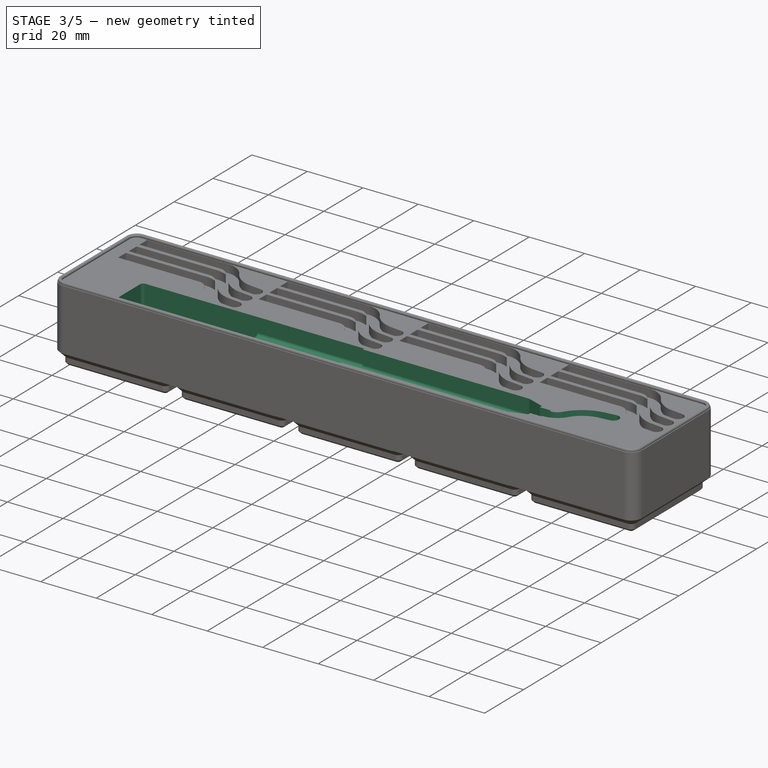
[diagram: stage 3 of 5 — iso view after this stage's code; geometry added in this stage tinted green]
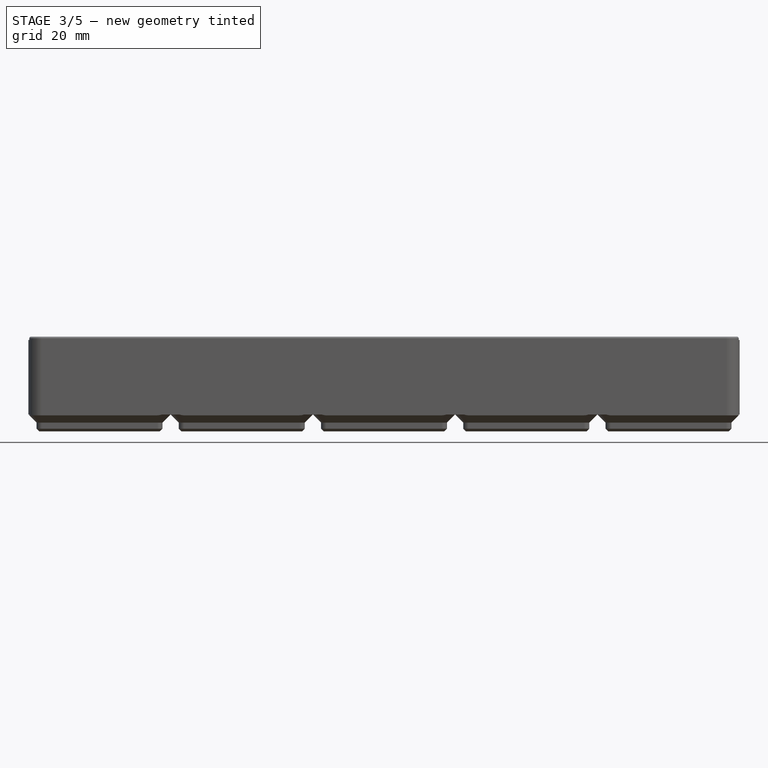
[diagram: stage 3 of 5 — front view after this stage's code; geometry added in this stage tinted green]
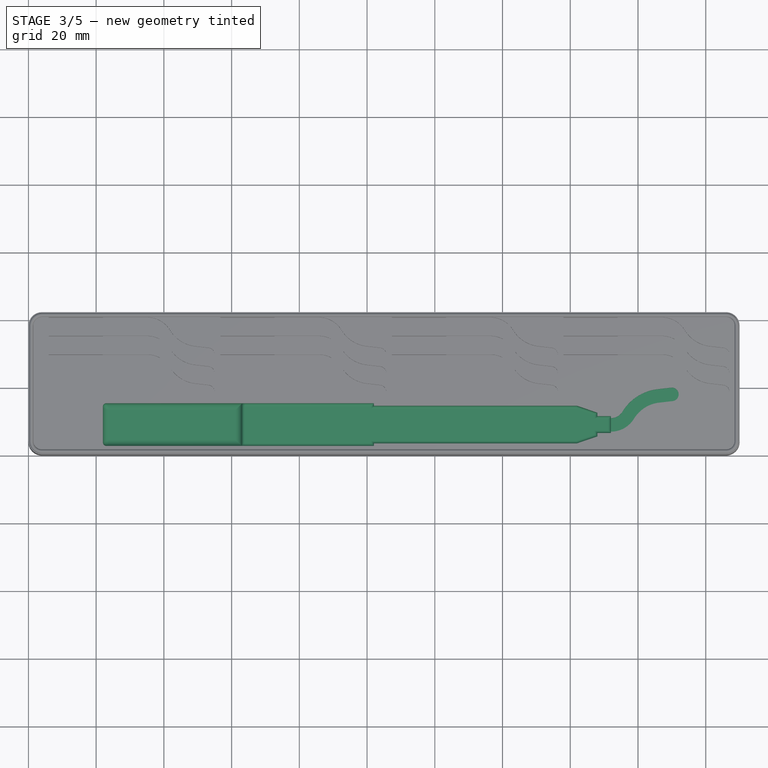
[diagram: stage 3 of 5 — top view after this stage's code; geometry added in this stage tinted green]
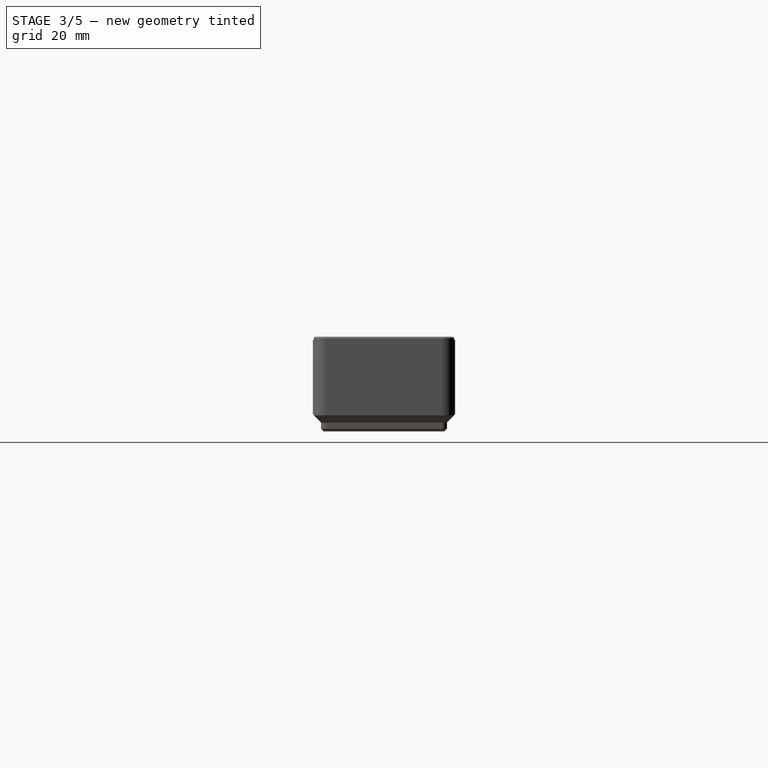
[diagram: stage 3 of 5 — right view after this stage's code; geometry added in this stage tinted green]
FEATURE [PartDesign::Pocket] Pocket020
  BaseFeature = -> MultiTransform
  Direction = (0,0,-1)
  Length = 5
  Length2 = 5
  Placement = pos=(0,0,0) rot=(0.57735,0.57735,0.57735;2.0944rad)
  Profile = -> Sketch034
  ReferenceAxis = -> Sketch034 [N_Axis]
  Reversed = true
  Type = 1
FEATURE [Sketcher::SketchObject] Sketch039
  AttachmentOffset = pos=(0,0,18) rot=(0,0,1;0rad)
  ExternalGeometry = -> [Sketch034]
  FullyConstrained = true
  MapMode = 5
  Placement = pos=(0,0,18) rot=(0,0,1;0rad)
  Support = -> [XY_Plane009]
  sketch-geometry (6):
    g0: LineSegment StartX=22 StartY=14.1 StartZ=0 EndX=22 EndY=3.5 EndZ=0
    g1: LineSegment StartX=23 StartY=2.5 StartZ=0 EndX=63 EndY=2.5 EndZ=0
    g2: LineSegment StartX=63 StartY=2.5 StartZ=0 EndX=63 EndY=15.1 EndZ=0
    g3: LineSegment StartX=63 StartY=15.1 StartZ=0 EndX=23 EndY=15.1 EndZ=0
    g4: ArcOfCircle CenterX=23 CenterY=3.5 CenterZ=0 NormalX=0 NormalY=0 NormalZ=1 AngleXU=0 Radius=1 StartAngle=3.14159 EndAngle=4.71239
    g5: ArcOfCircle CenterX=23 CenterY=14.1 CenterZ=0 NormalX=0 NormalY=0 NormalZ=1 AngleXU=0 Radius=1 StartAngle=1.5708 EndAngle=3.14159
  constraints (15):
    c: Horizontal(g1)
    c: Coincident(g2,g1)
    c: Vertical(g2)
    c: Coincident(g3,g2)
    c: DistanceX(g3,g3) = 40
    c: Vertical(g0)
    c: Equal(g5,g4)
    c: DistanceY(g2,g2) = 12.6
    c: Tangent(g4,g0) = -1.5708
    c: Tangent(g0,g5) = -1.5708
    c: Tangent(g5,g3) = -1.5708
    c: Tangent(g4,g1) = -1.5708
    c: Radius(g5) = 1
    c: Coincident(g5,g-3)
    c: Horizontal(g3)
FEATURE [PartDesign::SubShapeBinder] Binder002
  BindCopyOnChange = 0
  BindMode = 0
  ClaimChildren = false
  Context = -> Body009 [Binder002.]
  Fuse = false
  MakeFace = true
  OffsetFill = false
  OffsetIntersection = false
  OffsetJoinType = 0
  OffsetOpenResult = false
  PartialLoad = false
  Placement = pos=(137,47.2,24) rot=(1,0,0;3.14159rad)
  Refine = true
  Relative = false
  Support = -> [Pocket024[Sketch037.]]
  _Version = 2
FEATURE [PartDesign::Pocket] Pocket026
  BaseFeature = -> Pocket020
  Direction = (0,1e-16,1)
  Length = 5
  Length2 = 5
  Placement = pos=(0,0,0) rot=(0.57735,0.57735,0.57735;2.0944rad)
  Profile = -> Binder002
  Type = 1
FEATURE [PartDesign::Pocket] Pocket027
  BaseFeature = -> Pocket026
  Direction = (0,0,-1)
  Length = 5
  Length2 = 5
  Placement = pos=(0,0,0) rot=(0.57735,0.57735,0.57735;2.0944rad)
  Profile = -> Sketch039
  ReferenceAxis = -> Sketch039 [N_Axis]
  Refine = true
  Reversed = true
  Type = 1
FEATURE [PartDesign::Fillet] Fillet017
  Base = -> Pocket027 [Face390]
  BaseFeature = -> Pocket027
  Placement = pos=(0,0,0) rot=(0.57735,0.57735,0.57735;2.0944rad)
  Radius = 2
  SupportTransform = false
  UseAllEdges = false
FEATURE [PartDesign::Fillet] Fillet018
  Base = -> Fillet017 [Face4]
  BaseFeature = -> Fillet017
  Placement = pos=(0,0,0) rot=(0.57735,0.57735,0.57735;2.0944rad)
  Radius = 0.9
  SupportTransform = false
  UseAllEdges = false
FEATURE [PartDesign::Body] Body009  label="Deburring tool holder"
  BaseFeature = -> Pad
  Group = -> [Clone008,Sketch037,Pocket024,Sketch038,Pocket025,MultiTransform,LinearPattern,LinearPattern004,Sketch034,Pocket020,Binder002,Sketch039,Pocket026,Pocket027,Fillet017,Fillet018]
  Origin = -> Origin009
  Tip = -> Fillet018
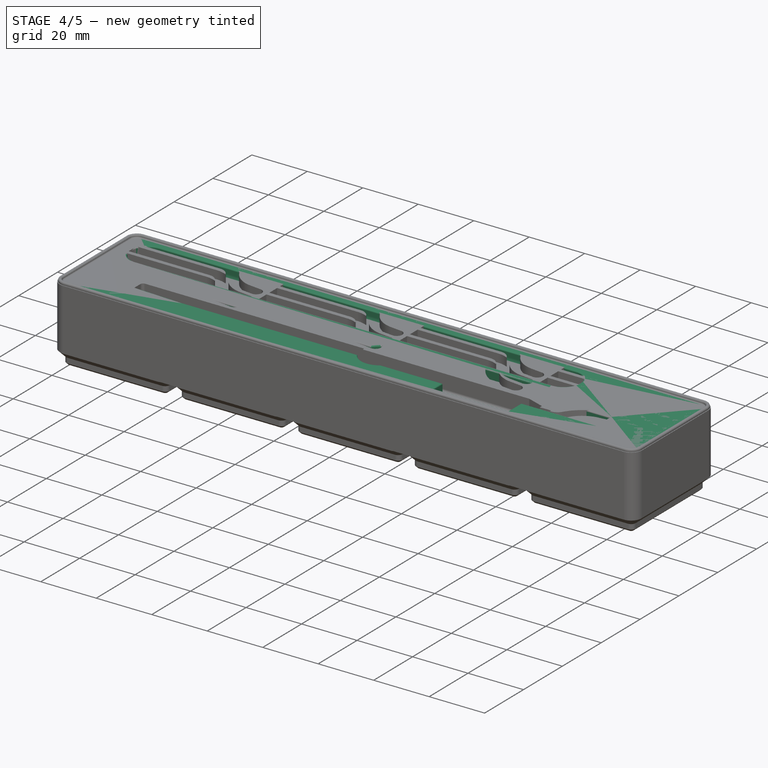
[diagram: stage 4 of 5 — iso view after this stage's code; geometry added in this stage tinted green]
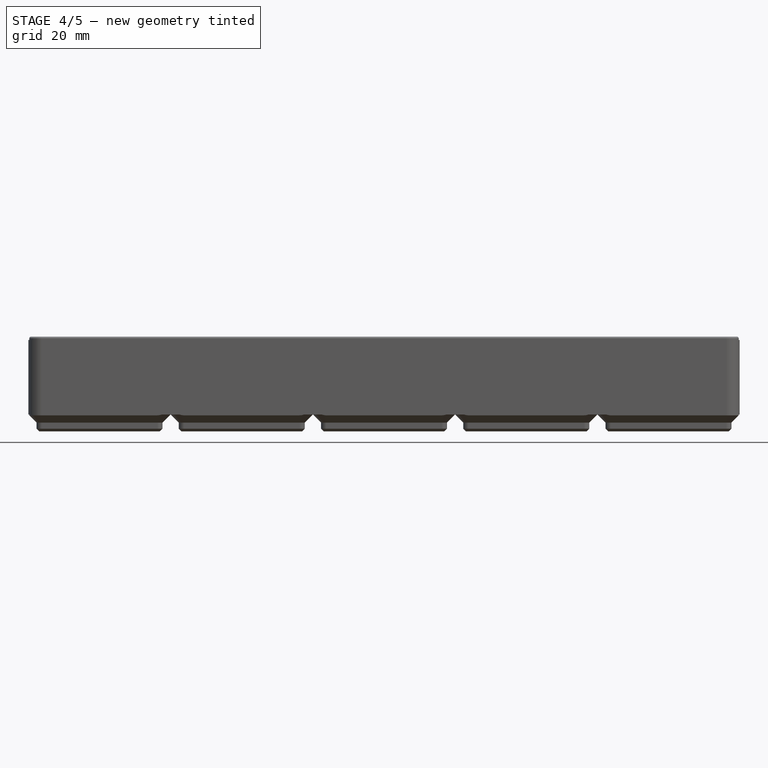
[diagram: stage 4 of 5 — front view after this stage's code; geometry added in this stage tinted green]
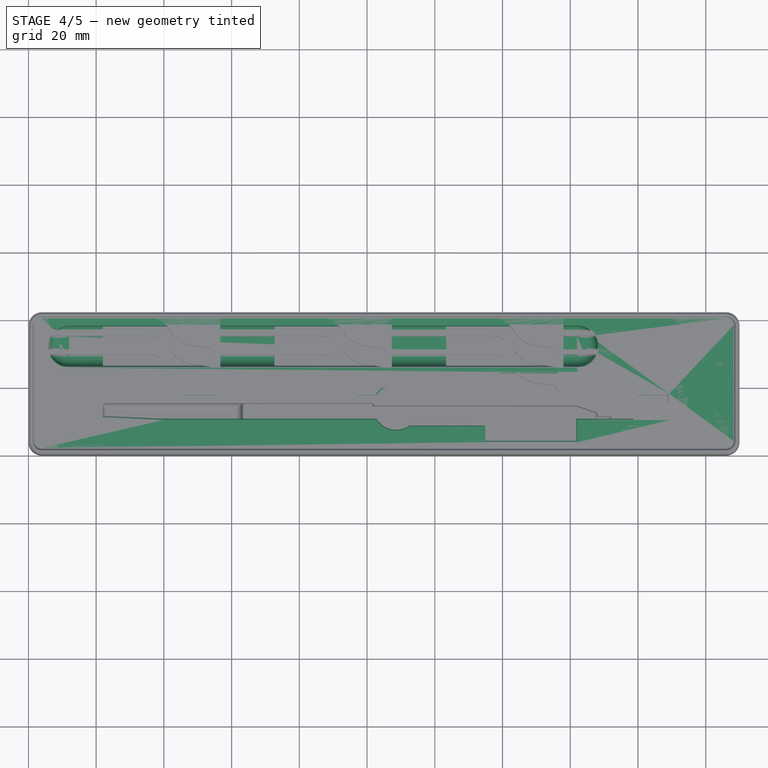
[diagram: stage 4 of 5 — top view after this stage's code; geometry added in this stage tinted green]
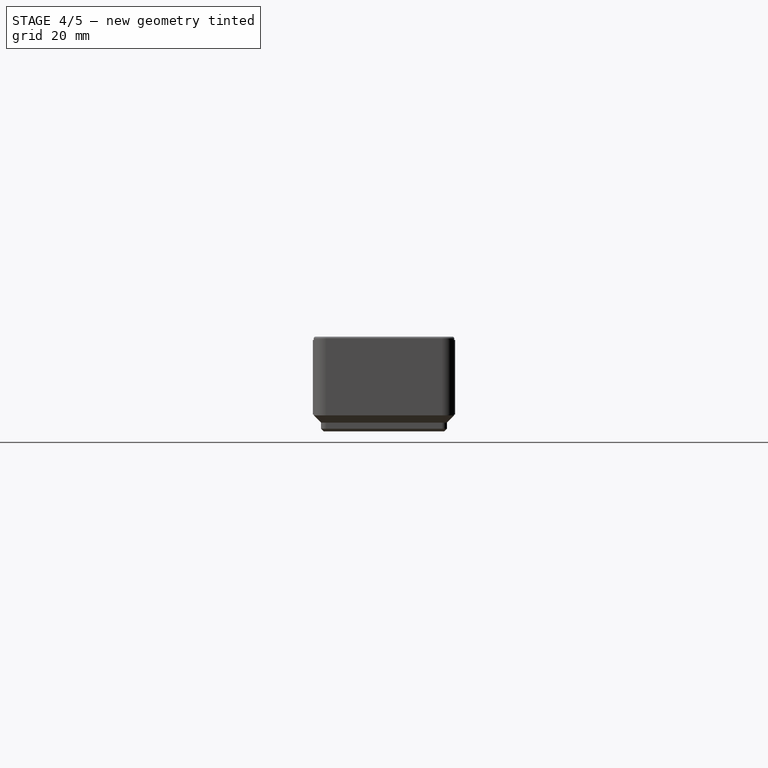
[diagram: stage 4 of 5 — right view after this stage's code; geometry added in this stage tinted green]
FEATURE [PartDesign::Body] Body007  label="Cutter holder"
  BaseFeature = -> Pad
  Group = -> [Clone006,Sketch030,Pocket016,Pocket018,Fillet014,Fillet015,Sketch032]
  Origin = -> Origin007
  Tip = -> Fillet015
FEATURE [PartDesign::Plane] DatumPlane001
  AttachmentOffset = pos=(0,0,0) rot=(0,1,0;-0.003491rad)
  Length = 260.289
  MapMode = 5
  Placement = pos=(0,0,0) rot=(0,1,0;6.2797rad)
  ResizeMode = 0
  Support = -> [XY_Plane008]
  Width = 92.1056
FEATURE [Sketcher::SketchObject] Sketch035  label="Scribe master sketch"
  AttachmentOffset = pos=(0,14,5) rot=(0,0,1;0rad)
  FullyConstrained = true
  MapMode = 5
  Placement = pos=(-0.0174533,14,4.99997) rot=(0,-1,0;0.003491rad)
  Support = -> [DatumPlane001]
  sketch-geometry (18):
    g0: LineSegment StartX=6.90906 StartY=1.99793 StartZ=0 EndX=39.9091 EndY=3.5 EndZ=0
    g1: LineSegment StartX=39.9091 StartY=3.5 StartZ=0 EndX=102.909 EndY=3.5 EndZ=0
    g2: LineSegment StartX=112.594 StartY=5.5 StartZ=0 EndX=134.909 EndY=5.5 EndZ=0
    g3: LineSegment StartX=134.909 StartY=5.5 StartZ=0 EndX=134.909 EndY=10 EndZ=0
    g4: LineSegment StartX=134.909 StartY=10 StartZ=0 EndX=161.909 EndY=10 EndZ=0
    g5: LineSegment StartX=161.909 StartY=10 StartZ=0 EndX=161.909 EndY=3.5 EndZ=0
    g6: LineSegment StartX=161.909 StartY=3.5 StartZ=0 EndX=188.909 EndY=3.5 EndZ=0
    g7: LineSegment StartX=188.909 StartY=3.5 StartZ=0 EndX=188.909 EndY=-3.5 EndZ=0
    g8: ArcOfCircle CenterX=108.681 CenterY=2e-15 CenterZ=0 NormalX=0 NormalY=0 NormalZ=1 AngleXU=0 Radius=6.75 StartAngle=0.95241 EndAngle=2.59648
    g9: LineSegment StartX=6.90906 StartY=-1.99793 StartZ=0 EndX=39.9091 EndY=-3.5 EndZ=0
    g10: LineSegment StartX=39.9091 StartY=-3.5 StartZ=0 EndX=102.909 EndY=-3.5 EndZ=0
    g11: LineSegment StartX=112.594 StartY=-5.5 StartZ=0 EndX=134.909 EndY=-5.5 EndZ=0
    g12: LineSegment StartX=134.909 StartY=-5.5 StartZ=0 EndX=134.909 EndY=-10 EndZ=0
    g13: LineSegment StartX=134.909 StartY=-10 StartZ=0 EndX=161.909 EndY=-10 EndZ=0
    g14: LineSegment StartX=161.909 StartY=-10 StartZ=0 EndX=161.909 EndY=-3.5 EndZ=0
    g15: LineSegment StartX=161.909 StartY=-3.5 StartZ=0 EndX=188.909 EndY=-3.5 EndZ=0
    g16: ArcOfCircle CenterX=108.681 CenterY=2e-15 CenterZ=0 NormalX=0 NormalY=0 NormalZ=1 AngleXU=0 Radius=6.75 StartAngle=3.68671 EndAngle=5.33078
    g17: ArcOfCircle CenterX=7 CenterY=0 CenterZ=0 NormalX=0 NormalY=0 NormalZ=1 AngleXU=0 Radius=2 StartAngle=1.61628 EndAngle=4.6669
  constraints (49):
    c: Coincident(g0,g1)
    c: Horizontal(g1)
    c: Horizontal(g2)
    c: Coincident(g2,g3)
    c: Coincident(g3,g4)
    c: Coincident(g4,g5)
    c: Vertical(g5)
    c: Coincident(g5,g6)
    c: Horizontal(g6)
    c: Coincident(g6,g7)
    c: Coincident(g8,g1)
    c: Coincident(g8,g2)
    c: Coincident(g9,g10)
    c: Horizontal(g10)
    c: Horizontal(g11)
    c: Coincident(g11,g12)
    c: Coincident(g12,g13)
    c: Coincident(g13,g14)
    c: Coincident(g14,g15)
    c: Horizontal(g15)
    c: Coincident(g16,g10)
    c: Coincident(g16,g11)
    c: PointOnObject(g17,g-1)
    c: Radius(g17) = 2
    c: DistanceY(g9,g0) = 7
    c: Symmetric(g9,g0,g-1)
    c: Tangent(g17,g9) = -1.5708
    c: Tangent(g0,g17) = 1.5708
    c: DistanceX(g9,g9) = 33
    c: DistanceX(g10,g10) = 63
    c: Coincident(g16,g8)
    c: Equal(g8,g16)
    c: Diameter(g8) = 13.5
    c: DistanceX(g0,g2) = 95
    c: Vertical(g11,g2)
    c: Vertical(g3)
    c: DistanceY(g12,g3) = 20
    c: Symmetric(g3,g12,g-1)
    c: DistanceY(g13,g4) = 20
    c: Symmetric(g13,g4,g-1)
    c: Symmetric(g5,g14,g-1)
    c: Coincident(g7,g15)
    c: Vertical(g7)
    c: DistanceY(g7,g7) = 7
    c: DistanceX(g6,g6) = 27
    c: DistanceX(g12,g13) = 27
    c: Symmetric(g11,g2,g-1)
    c: DistanceY(g11,g2) = 11
    c: DistanceX(g-1,g17) = 7
FEATURE [Sketcher::SketchObject] Sketch
  AttachmentOffset = pos=(0,0,-14) rot=(0,0,1;0rad)
  ExternalGeometry = -> [Sketch035]
  FullyConstrained = true
  MapMode = 5
  Placement = pos=(0,14,3.1e-15) rot=(1,0,0;1.5708rad)
  Support = -> [XZ_Plane008]
  sketch-geometry (2):
    g0: Circle CenterX=148.391 CenterY=5.56514 CenterZ=0 NormalX=0 NormalY=0 NormalZ=1 AngleXU=0 Radius=13.5
    g1: LineSegment StartX=148.391 StartY=5.56514 StartZ=0 EndX=148.391 EndY=5.51801 EndZ=0
  constraints (6):
    c: DistanceY(g-3,g0) = 0
    c: Vertical(g1)
    c: Symmetric(g-3,g-3,g1)
    c: Coincident(g1,g0)
    c: DistanceX(g-3,g-3) = 26.9998
    c: Diameter(g0) = 27
FEATURE [Sketcher::SketchObject] Sketch036
  AttachmentOffset = pos=(0,0,22) rot=(0,0,1;0rad)
  FullyConstrained = true
  MapMode = 5
  Placement = pos=(0,0,22) rot=(0,0,1;0rad)
  Support = -> [XY_Plane008]
  sketch-geometry (4):
    g0: ArcOfCircle CenterX=12 CenterY=32 CenterZ=0 NormalX=0 NormalY=0 NormalZ=1 AngleXU=0 Radius=6 StartAngle=1.5708 EndAngle=4.71239
    g1: ArcOfCircle CenterX=162 CenterY=32 CenterZ=0 NormalX=0 NormalY=0 NormalZ=1 AngleXU=0 Radius=6 StartAngle=4.71239 EndAngle=7.85398
    g2: LineSegment StartX=12 StartY=26 StartZ=0 EndX=162 EndY=26 EndZ=0
    g3: LineSegment StartX=162 StartY=38 StartZ=0 EndX=12 EndY=38 EndZ=0
  constraints (10):
    c: Tangent(g0,g2) = -1.5708
    c: Tangent(g2,g1) = -1.5708
    c: Tangent(g1,g3) = -1.5708
    c: Tangent(g3,g0) = -1.5708
    c: Equal(g0,g1)
    c: Horizontal(g2)
    c: DistanceX(g0,g1) = 150
    c: Radius(g1) = 6
    c: DistanceX(g-1,g0) = 12
    c: DistanceY(g-1,g0) = 32
FEATURE [PartDesign::FeatureBase] BaseFeature  label="Unnamed"
FEATURE [PartDesign::FeatureBase] Clone007
  BaseFeature = -> BaseFeature
  Placement = pos=(0,0,0) rot=(0.57735,0.57735,0.57735;2.0944rad)
FEATURE [PartDesign::Pocket] Pocket021
  BaseFeature = -> Clone007
  Direction = (0.00349065,0,-0.999994)
  Length = 5
  Length2 = 5
  Placement = pos=(0,0,0) rot=(0.57735,0.57735,0.57735;2.0944rad)
  Profile = -> Sketch035
  ReferenceAxis = -> Sketch035 [N_Axis]
  Reversed = true
  Type = 1
FEATURE [PartDesign::Pocket] Pocket022
  BaseFeature = -> Pocket021
  Direction = (0,1,2e-16)
  Length = 20
  Length2 = 5
  Midplane = true
  Placement = pos=(0,0,0) rot=(0.57735,0.57735,0.57735;2.0944rad)
  Profile = -> Sketch
  ReferenceAxis = -> Sketch [N_Axis]
  Refine = true
  Type = 0
FEATURE [PartDesign::Pocket] Pocket023
  BaseFeature = -> Pocket022
  Direction = (0,0,-1)
  Length = 5
  Length2 = 5
  Placement = pos=(0,0,0) rot=(0.57735,0.57735,0.57735;2.0944rad)
  Profile = -> Sketch036
  ReferenceAxis = -> Sketch036 [N_Axis]
  Reversed = true
  Type = 1
FEATURE [PartDesign::Fillet] Fillet016
  Base = -> Pocket023 [Face239]
  BaseFeature = -> Pocket023
  Placement = pos=(0,0,0) rot=(0.57735,0.57735,0.57735;2.0944rad)
  Radius = 3.1
  SupportTransform = false
  UseAllEdges = false
FEATURE [PartDesign::Fillet] Fillet
  Base = -> Fillet016 [Face4]
  BaseFeature = -> Fillet016
  Placement = pos=(0,0,0) rot=(0.57735,0.57735,0.57735;2.0944rad)
  Radius = 0.4
  SupportTransform = false
  UseAllEdges = false
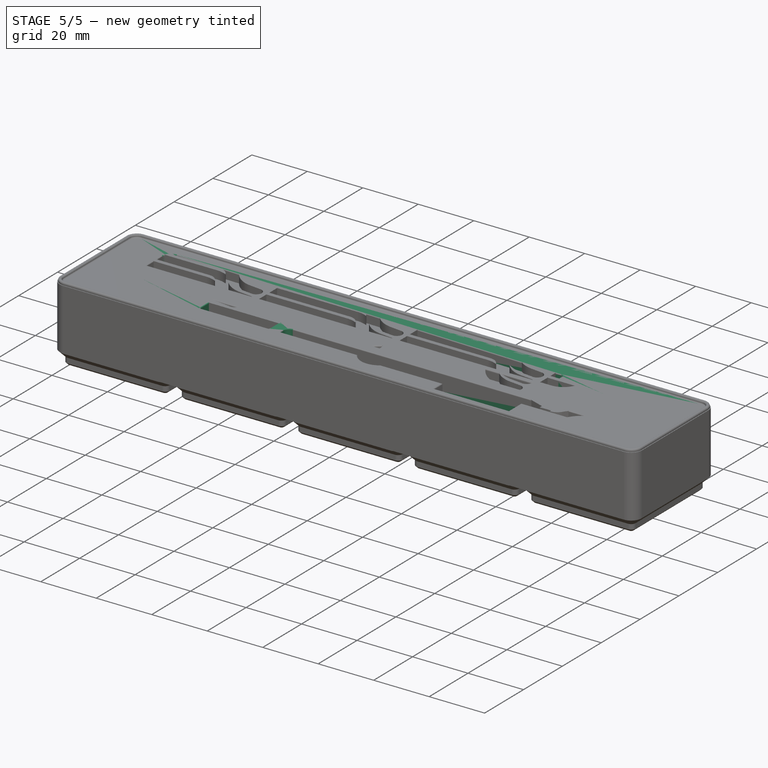
[diagram: stage 5 of 5 — iso view after this stage's code; geometry added in this stage tinted green]
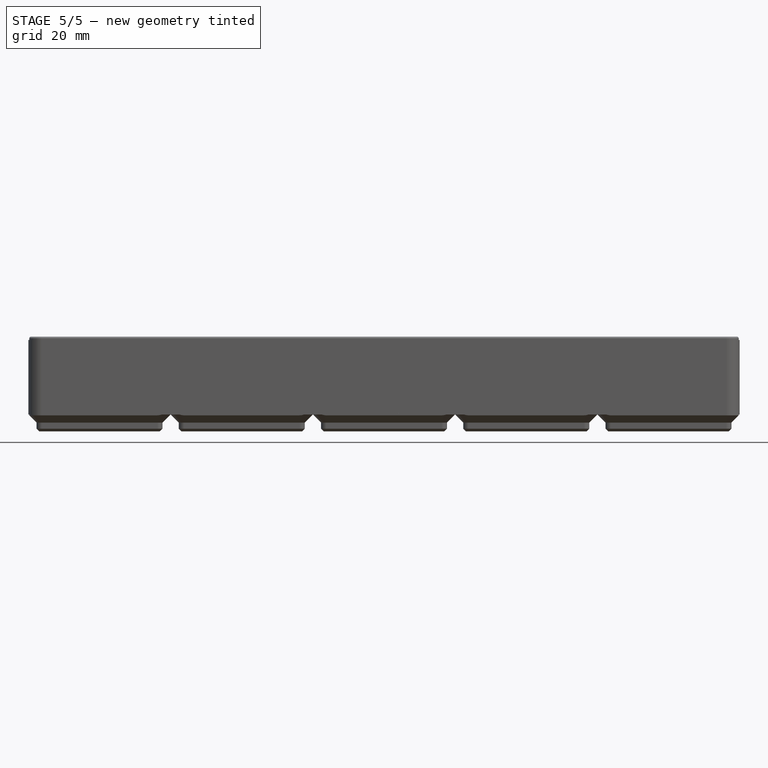
[diagram: stage 5 of 5 — front view after this stage's code; geometry added in this stage tinted green]
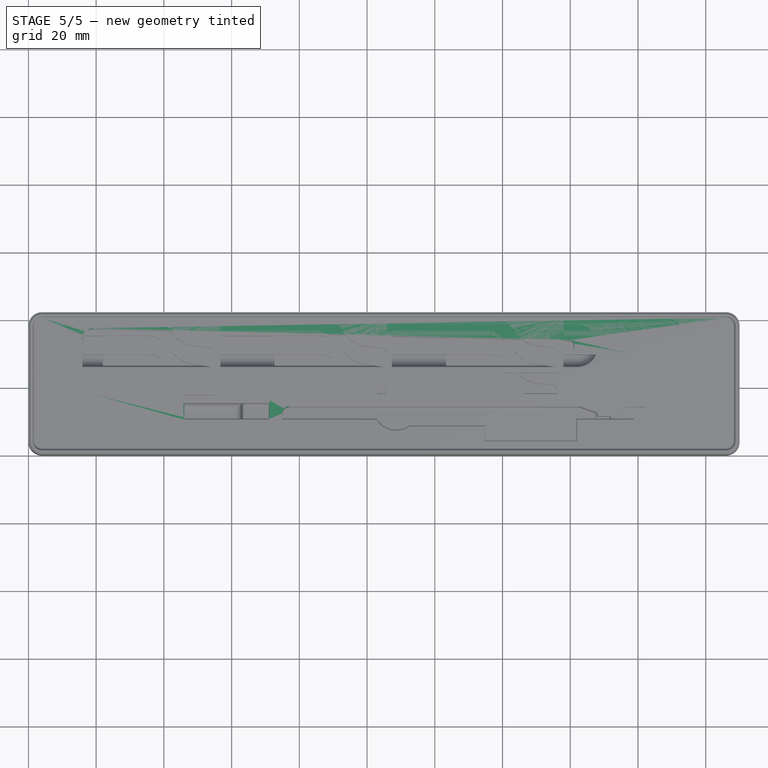
[diagram: stage 5 of 5 — top view after this stage's code; geometry added in this stage tinted green]
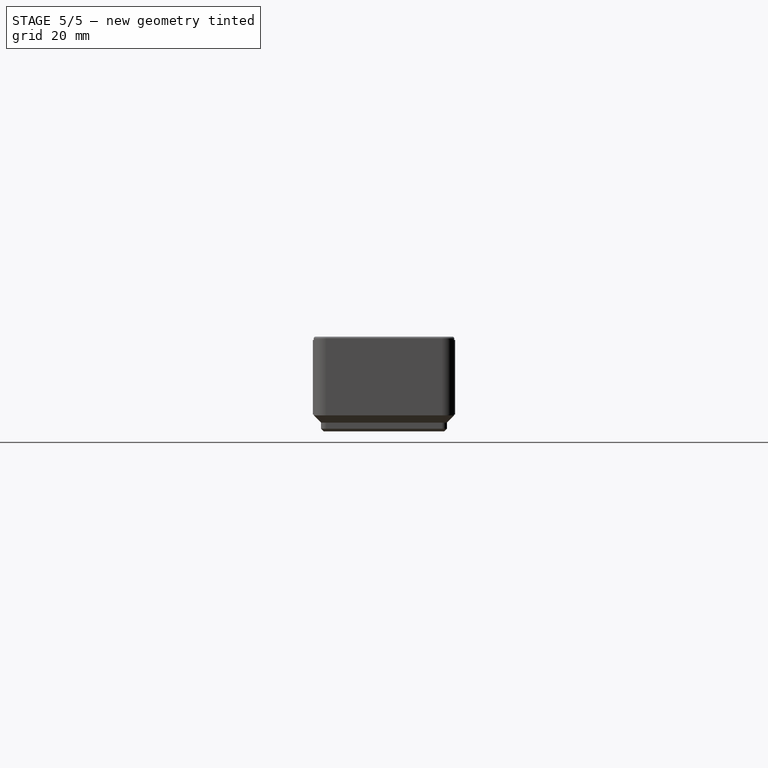
[diagram: stage 5 of 5 — right view after this stage's code; geometry added in this stage tinted green]
FEATURE [PartDesign::Body] Body001  label="Blank Storage"
  Group = -> [Sketch005,Sketch006,AdditivePipe,DatumPlane,Sketch007,Pocket,Sketch008,Pad001,Sketch009,Sketch010,Sketch011,Sketch012,SubtractiveLoft001,Sketch013,Hole,Sketch014,MultiTransform001,LinearPattern002,LinearPattern003,Pad,Binder]
  Origin = -> Origin001
  Tip = -> Pad
FEATURE [PartDesign::FeatureBase] Clone006
  BaseFeature = -> Pad
  Placement = pos=(0,0,0) rot=(0.57735,0.57735,0.57735;2.0944rad)
FEATURE [Sketcher::SketchObject] Sketch030  label="Cutter sketch"
  AttachmentOffset = pos=(0,0,10) rot=(0,0,1;0rad)
  FullyConstrained = true
  MapMode = 5
  Placement = pos=(0,0,10) rot=(0,0,1;0rad)
  Support = -> [XY_Plane007]
  sketch-geometry (31):
    g0: ArcOfCircle CenterX=19 CenterY=34.0009 CenterZ=0 NormalX=0 NormalY=0 NormalZ=1 AngleXU=0 Radius=3 StartAngle=1.54614 EndAngle=3.14159
    g1: ArcOfCircle CenterX=178 CenterY=26.5 CenterZ=0 NormalX=0 NormalY=0 NormalZ=1 AngleXU=0 Radius=3 StartAngle=3e-16 EndAngle=1.5708
    g2: LineSegment StartX=181 StartY=26.5 StartZ=0 EndX=181 EndY=23 EndZ=0
    g3: ArcOfCircle CenterX=178 CenterY=23 CenterZ=0 NormalX=0 NormalY=0 NormalZ=1 AngleXU=0 Radius=3 StartAngle=4.71239 EndAngle=6.28319
    g4: ArcOfCircle CenterX=19 CenterY=21 CenterZ=0 NormalX=0 NormalY=0 NormalZ=1 AngleXU=0 Radius=3 StartAngle=3.14159 EndAngle=4.71239
    g5: LineSegment StartX=16 StartY=21 StartZ=0 EndX=16 EndY=34.0009 EndZ=0
    g6: LineSegment StartX=19 StartY=18 StartZ=0 EndX=44 EndY=18 EndZ=0
    g7: LineSegment StartX=46 StartY=16 StartZ=0 EndX=46 EndY=11 EndZ=0
    g8: LineSegment StartX=47 StartY=10 StartZ=0 EndX=70 EndY=10 EndZ=0
    g9: LineSegment StartX=71 StartY=11 StartZ=0 EndX=71 EndY=16 EndZ=0
    g10: ArcOfCircle CenterX=44 CenterY=16 CenterZ=0 NormalX=0 NormalY=0 NormalZ=1 AngleXU=0 Radius=2 StartAngle=0 EndAngle=1.5708
    g11: GeomPoint X=46 Y=18 Z=0
    g12: ArcOfCircle CenterX=73 CenterY=16 CenterZ=0 NormalX=0 NormalY=0 NormalZ=1 AngleXU=0 Radius=2 StartAngle=1.5708 EndAngle=3.14159
    g13: LineSegment StartX=178 StartY=29.5 StartZ=0 EndX=161.9 EndY=29.5 EndZ=0
    g14: LineSegment StartX=161 StartY=30.4 StartZ=0 EndX=161 EndY=32.6219 EndZ=0
    g15: LineSegment StartX=160.122 StartY=33.5216 StartZ=0 EndX=19.074 EndY=37 EndZ=0
    g16: LineSegment StartX=73 StartY=18 StartZ=0 EndX=160.1 EndY=18 EndZ=0
    g17: LineSegment StartX=161 StartY=18.9 StartZ=0 EndX=161 EndY=19.1 EndZ=0
    g18: LineSegment StartX=161.9 StartY=20 StartZ=0 EndX=178 EndY=20 EndZ=0
    g19: ArcOfCircle CenterX=47 CenterY=11 CenterZ=0 NormalX=0 NormalY=0 NormalZ=1 AngleXU=0 Radius=1 StartAngle=3.14159 EndAngle=4.71239
    g20: GeomPoint X=46 Y=10 Z=0
    g21: ArcOfCircle CenterX=70 CenterY=11 CenterZ=0 NormalX=0 NormalY=0 NormalZ=1 AngleXU=0 Radius=1 StartAngle=4.71239 EndAngle=6.28319
    g22: GeomPoint X=71 Y=10 Z=0
    g23: ArcOfCircle CenterX=160.1 CenterY=18.9 CenterZ=0 NormalX=0 NormalY=0 NormalZ=1 AngleXU=0 Radius=0.9 StartAngle=4.71239 EndAngle=6.28319
    g24: GeomPoint X=161 Y=18 Z=0
    g25: ArcOfCircle CenterX=161.9 CenterY=19.1 CenterZ=0 NormalX=0 NormalY=0 NormalZ=1 AngleXU=0 Radius=0.9 StartAngle=1.5708 EndAngle=3.14159
    g26: GeomPoint X=161 Y=20 Z=0
    g27: ArcOfCircle CenterX=161.9 CenterY=30.4 CenterZ=0 NormalX=0 NormalY=0 NormalZ=1 AngleXU=0 Radius=0.9 StartAngle=3.14159 EndAngle=4.71239
    g28: GeomPoint X=161 Y=29.5 Z=0
    g29: ArcOfCircle CenterX=160.1 CenterY=32.6219 CenterZ=0 NormalX=0 NormalY=0 NormalZ=1 AngleXU=0 Radius=0.9 StartAngle=-9e-16 EndAngle=1.54614
    g30: GeomPoint X=161 Y=33.5 Z=0
  constraints (74):
    c: Tangent(g1,g2) = 1.5708
    c: Tangent(g2,g3) = 1.5708
    c: Tangent(g4,g5) = 1.5708
    c: Tangent(g5,g0) = 1.5708
    c: Vertical(g2)
    c: Vertical(g5)
    c: Equal(g0,g1)
    c: Equal(g1,g3)
    c: Equal(g3,g4)
    c: Horizontal(g6)
    c: Horizontal(g8)
    c: Vertical(g9)
    c: DistanceY(g4,g0) = 19
    c: Vertical(g7)
    c: DistanceY(g20,g11) = 8
    c: PointOnObject(g11,g6)
    c: PointOnObject(g11,g7)
    c: Tangent(g6,g10) = 1.5708
    c: Tangent(g7,g10) = 1.5708
    c: Tangent(g9,g12) = 1.5708
    c: Equal(g10,g12)
    c: Radius(g10) = 2
    c: Radius(g1) = 3
    c: DistanceX(g4,g7) = 30
    c: DistanceX(g20,g22) = 25
    c: DistanceX(g0,g1) = 165
    c: Tangent(g6,g4) = -1.5708
    c: Horizontal(g13)
    c: Vertical(g14)
    c: Horizontal(g16)
    c: Vertical(g17)
    c: Horizontal(g18)
    c: DistanceY(g24,g30) = 15.5
    c: DistanceX(g28,g2) = 20
    c: Vertical(g26,g28)
    c: DistanceY(g24,g26) = 2
    c: DistanceY(g28,g30) = 4
    c: Tangent(g16,g12) = 1.5708
    c: Horizontal(g9,g7)
    c: Tangent(g15,g0) = -1.5708
    c: Tangent(g18,g3) = -1.5708
    c: Tangent(g13,g1) = -1.5708
    c: DistanceX(g-1,g4) = 16
    c: DistanceY(g-1,g4) = 18
    c: PointOnObject(g20,g7)
    c: PointOnObject(g20,g8)
    c: Tangent(g7,g19) = -1.5708
    c: Tangent(g8,g19) = -1.5708
    c: PointOnObject(g22,g8)
    c: PointOnObject(g22,g9)
    c: Tangent(g8,g21) = -1.5708
    c: Tangent(g9,g21) = -1.5708
    c: PointOnObject(g24,g16)
    c: PointOnObject(g24,g17)
    c: Tangent(g16,g23) = -1.5708
    c: Tangent(g17,g23) = -1.5708
    c: PointOnObject(g26,g17)
    c: PointOnObject(g26,g18)
    c: Tangent(g17,g25) = 1.5708
    c: Tangent(g18,g25) = 1.5708
    c: PointOnObject(g28,g13)
    c: PointOnObject(g28,g14)
    c: Tangent(g13,g27) = 1.5708
    c: Tangent(g14,g27) = 1.5708
    c: PointOnObject(g30,g14)
    c: PointOnObject(g30,g15)
    c: Tangent(g14,g29) = -1.5708
    c: Tangent(g15,g29) = -1.5708
    c: Equal(g29,g27)
    c: Equal(g27,g25)
    c: Equal(g25,g23)
    c: Equal(g21,g19)
    c: Radius(g19) = 1
    c: DistanceY(g17,g17) = 0.2
FEATURE [PartDesign::Pocket] Pocket016
  BaseFeature = -> Clone006
  Direction = (0,0,-1)
  Length = 5
  Length2 = 5
  Placement = pos=(0,0,0) rot=(0.57735,0.57735,0.57735;2.0944rad)
  Profile = -> Sketch030
  ReferenceAxis = -> Sketch030 [N_Axis]
  Reversed = true
  Type = 1
FEATURE [Sketcher::SketchObject] Sketch032  label="Blade box sketch"
  AttachmentOffset = pos=(0,0,15) rot=(0,0,1;0rad)
  FullyConstrained = true
  MapMode = 5
  Placement = pos=(0,0,15) rot=(0,0,1;0rad)
  Support = -> [XY_Plane007]
  sketch-geometry (8):
    g0: LineSegment StartX=77 StartY=4 StartZ=0 EndX=203 EndY=4 EndZ=0
    g1: LineSegment StartX=203 StartY=14 StartZ=0 EndX=77 EndY=14 EndZ=0
    g2: LineSegment StartX=205 StartY=12 StartZ=0 EndX=205 EndY=6 EndZ=0
    g3: ArcOfCircle CenterX=203 CenterY=12 CenterZ=0 NormalX=0 NormalY=0 NormalZ=1 AngleXU=0 Radius=2 StartAngle=-9e-16 EndAngle=1.5708
    g4: ArcOfCircle CenterX=203 CenterY=6 CenterZ=0 NormalX=0 NormalY=0 NormalZ=1 AngleXU=0 Radius=2 StartAngle=4.71239 EndAngle=6.28319
    g5: LineSegment StartX=75 StartY=6 StartZ=0 EndX=75 EndY=12 EndZ=0
    g6: ArcOfCircle CenterX=77 CenterY=12 CenterZ=0 NormalX=0 NormalY=0 NormalZ=1 AngleXU=0 Radius=2 StartAngle=1.5708 EndAngle=3.14159
    g7: ArcOfCircle CenterX=77 CenterY=6 CenterZ=0 NormalX=0 NormalY=0 NormalZ=1 AngleXU=0 Radius=2 StartAngle=3.14159 EndAngle=4.71239
  constraints (20):
    c: Horizontal(g0)
    c: Vertical(g2)
    c: Tangent(g1,g3) = -1.5708
    c: Tangent(g2,g3) = 1.5708
    c: Tangent(g0,g4) = -1.5708
    c: Tangent(g2,g4) = 1.5708
    c: Vertical(g5)
    c: Horizontal(g1)
    c: Tangent(g1,g6) = -1.5708
    c: Tangent(g5,g6) = 1.5708
    c: Tangent(g0,g7) = -1.5708
    c: Tangent(g5,g7) = 1.5708
    c: Equal(g4,g3)
    c: Equal(g3,g6)
    c: Equal(g6,g7)
    c: DistanceX(g-1,g5) = 75
    c: DistanceX(g5,g2) = 130
    c: DistanceY(g-1,g0) = 4
    c: Radius(g6) = 2
    c: DistanceY(g0,g1) = 10
FEATURE [PartDesign::Pocket] Pocket018
  BaseFeature = -> Pocket016
  Direction = (0,0,-1)
  Length = 5
  Length2 = 5
  Placement = pos=(0,0,0) rot=(0.57735,0.57735,0.57735;2.0944rad)
  Profile = -> Sketch032
  ReferenceAxis = -> Sketch032 [N_Axis]
  Reversed = true
  Type = 1
FEATURE [PartDesign::Fillet] Fillet014
  Base = -> Pocket018 [Face246,Face245]
  BaseFeature = -> Pocket018
  Placement = pos=(0,0,0) rot=(0.57735,0.57735,0.57735;2.0944rad)
  Radius = 2
  SupportTransform = false
  UseAllEdges = false
FEATURE [PartDesign::Fillet] Fillet015
  Base = -> Fillet014 [Face4]
  BaseFeature = -> Fillet014
  Placement = pos=(0,0,0) rot=(0.57735,0.57735,0.57735;2.0944rad)
  Radius = 0.25
  SupportTransform = false
  UseAllEdges = false
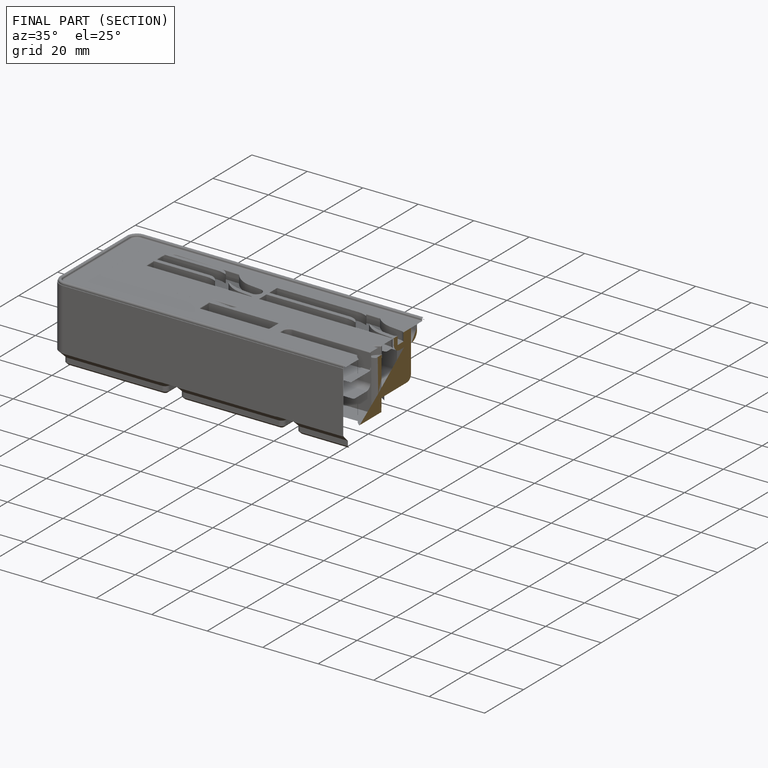
[diagram: finished part — half-section view (interior)]
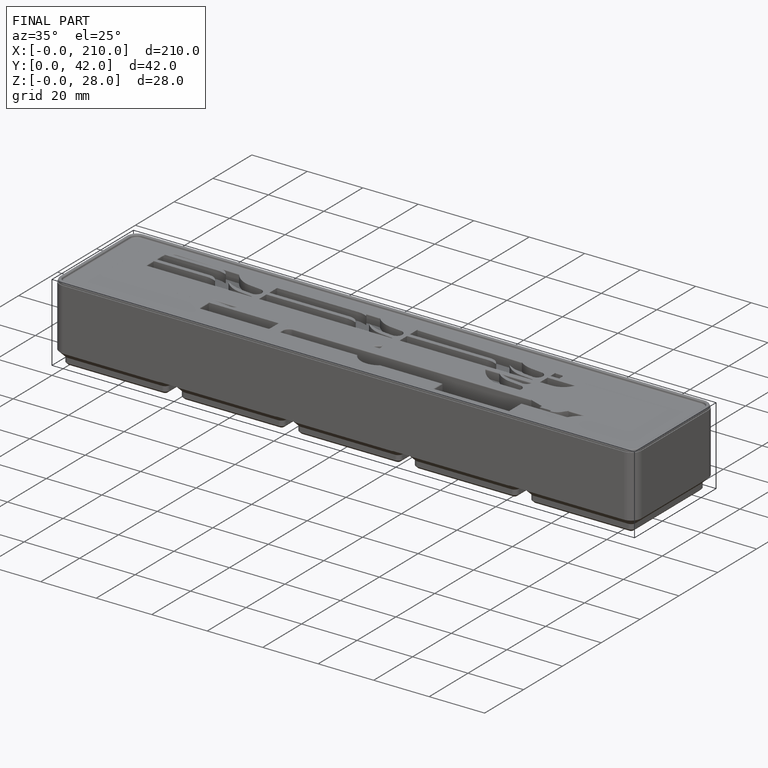
[diagram: finished part — iso view with bounding-box wireframe]
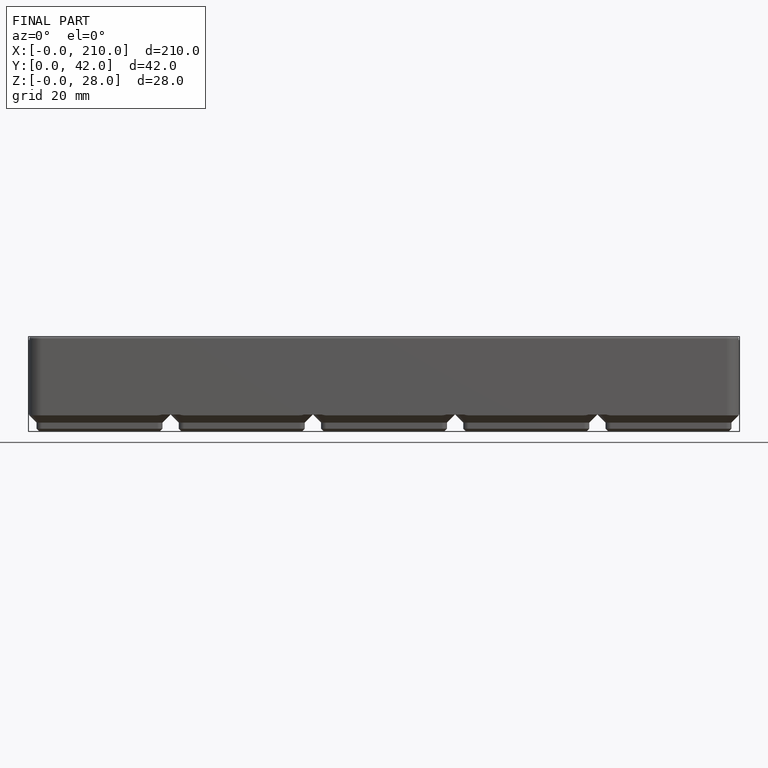
[diagram: finished part — front view with bounding-box wireframe]
